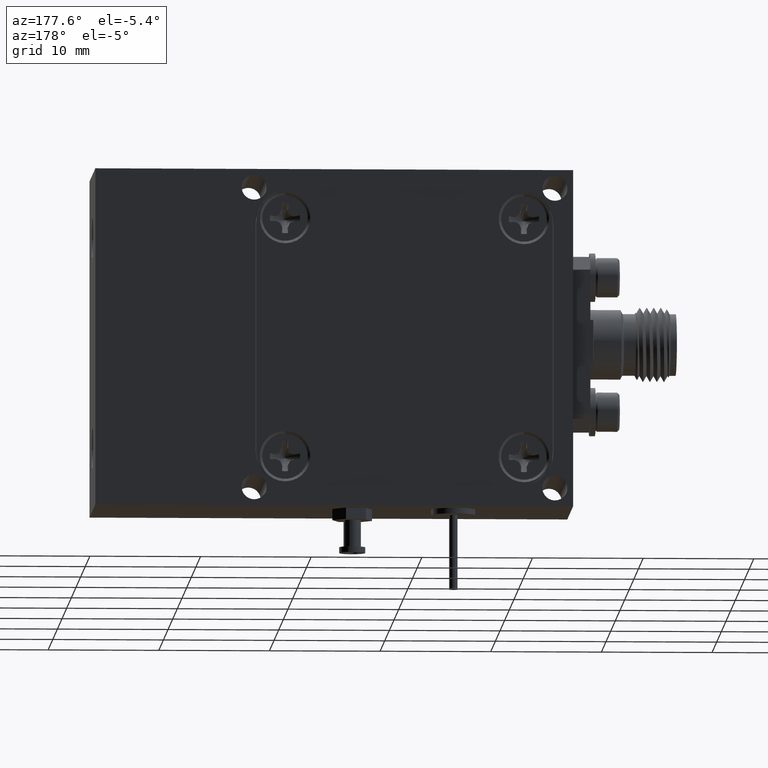
[diagram: clean part render]
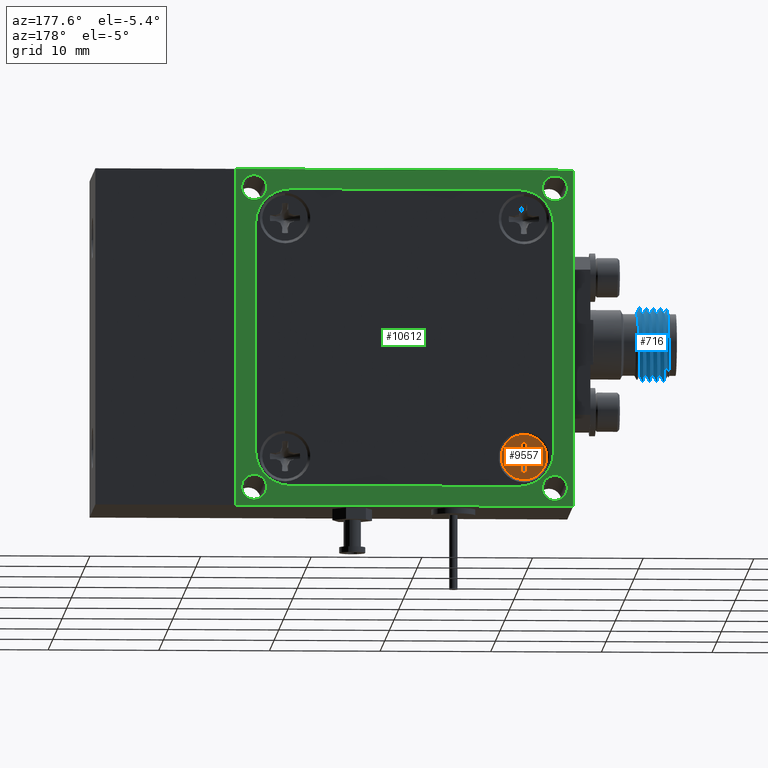
[diagram: same view with three faces highlighted in distinct colors, each labeled with its STEP entity id]
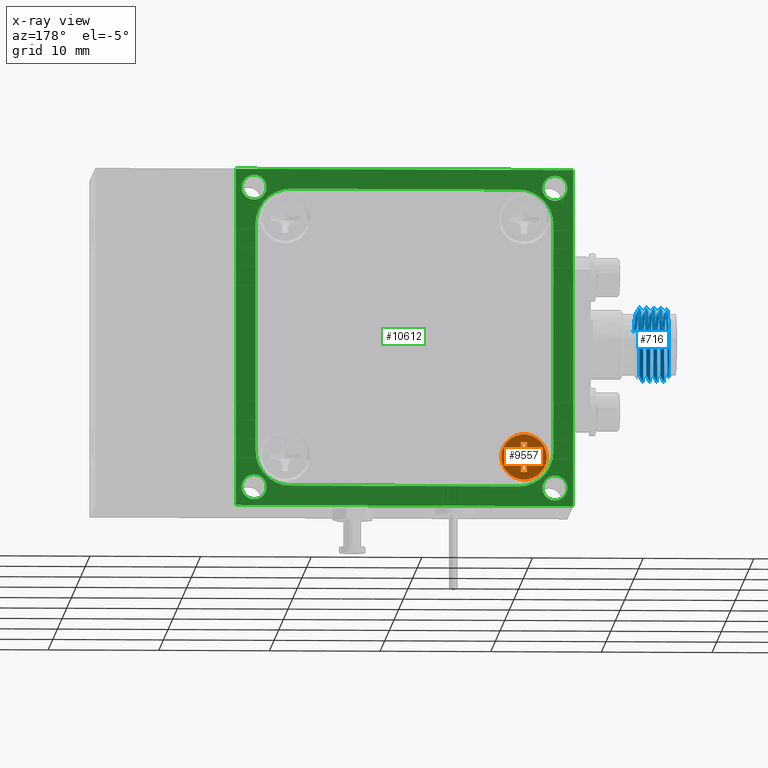
[diagram: x-ray of the same camera — body ghosted, the three highlighted faces saturated]
A machine part, auxiliary view with three faces highlighted in distinct colors.
The next image is the same camera in x-ray (body ghosted, the three faces saturated) — at least one of them is partly hidden behind the body in this view.
Their STEP definitions:

[orange] entity #9557 — the highlighted planar face has unit normal (0, -1, 0).
#12 = CARTESIAN_POINT ( 'NONE',  ( -0.4250000000000006600, 0.4995000000000000000, -0.4249999999999997100 ) ) ;
#69 = AXIS2_PLACEMENT_3D ( 'NONE', #1775, #6036, #2829 ) ;
#219 = VERTEX_POINT ( 'NONE', #705 ) ;
#395 = VECTOR ( 'NONE', #3101, 39.37007874015748900 ) ;
#497 = CARTESIAN_POINT ( 'NONE',  ( -0.3720910215558840300, 0.4995000000000000000, -0.4357999999999996900 ) ) ;
#510 = DIRECTION ( 'NONE',  ( 0.0000000000000000000, 1.000000000000000000, -6.938893903907228400E-018 ) ) ;
#530 = ORIENTED_EDGE ( 'NONE', *, *, #9614, .F. ) ;
#570 = VERTEX_POINT ( 'NONE', #3277 ) ;
#651 = CARTESIAN_POINT ( 'NONE',  ( -0.4080332828812787100, 0.4995000000000000000, -0.4080332828812781000 ) ) ;
#705 = CARTESIAN_POINT ( 'NONE',  ( -0.3931455107779423000, 0.4995000000000000000, -0.4357999999999996900 ) ) ;
#725 = VERTEX_POINT ( 'NONE', #7759 ) ;
#748 = EDGE_CURVE ( 'NONE', #7129, #2210, #10183, .T. ) ;
#929 = LINE ( 'NONE', #7716, #2244 ) ;
#967 = PLANE ( 'NONE',  #8088 ) ;
#971 = CARTESIAN_POINT ( 'NONE',  ( -0.4080332828812787100, 0.4995000000000000000, -0.4080332828812781000 ) ) ;
#1139 = DIRECTION ( 'NONE',  ( -1.047444401652940000E-014, -6.938893903907228400E-018, -1.000000000000000000 ) ) ;
#1230 = CIRCLE ( 'NONE', #4165, 0.05400000000000002700 ) ;
#1382 = CARTESIAN_POINT ( 'NONE',  ( -0.4419667171187225400, 0.4995000000000000000, -0.4419667171187214300 ) ) ;
#1510 = DIRECTION ( 'NONE',  ( -1.000000000000000000, 0.0000000000000000000, -0.0000000000000000000 ) ) ;
#1513 = DIRECTION ( 'NONE',  ( 0.9238795325112894000, 2.655399735964371300E-018, 0.3826834323650834000 ) ) ;
#1527 = EDGE_CURVE ( 'NONE', #1668, #7129, #10000, .T. ) ;
#1668 = VERTEX_POINT ( 'NONE', #971 ) ;
#1685 = DIRECTION ( 'NONE',  ( -1.000000000000000000, 0.0000000000000000000, 0.0000000000000000000 ) ) ;
#1775 = CARTESIAN_POINT ( 'NONE',  ( -0.4250000000000006600, 0.4995000000000000000, -0.4249999999999997100 ) ) ;
#1928 = FACE_OUTER_BOUND ( 'NONE', #2135, .T. ) ;
#1981 = CARTESIAN_POINT ( 'NONE',  ( -0.4250000000000006600, 0.4995000000000000000, -0.4249999999999997100 ) ) ;
#2115 = DIRECTION ( 'NONE',  ( 0.0000000000000000000, -1.000000000000000000, 2.486055127281388300E-017 ) ) ;
#2135 = EDGE_LOOP ( 'NONE', ( #2302, #7579 ) ) ;
#2210 = VERTEX_POINT ( 'NONE', #4293 ) ;
#2227 = CARTESIAN_POINT ( 'NONE',  ( -0.4358000000000008500, 0.4995000000000000000, -0.4779089784441162800 ) ) ;
#2244 = VECTOR ( 'NONE', #12878, 39.37007874015748100 ) ;
#2255 = LINE ( 'NONE', #3791, #4048 ) ;
#2302 = ORIENTED_EDGE ( 'NONE', *, *, #11647, .F. ) ;
#2437 = EDGE_CURVE ( 'NONE', #2210, #10275, #9458, .T. ) ;
#2504 = VECTOR ( 'NONE', #4238, 39.37007874015748100 ) ;
#2588 = CIRCLE ( 'NONE', #6876, 0.05399999999999995800 ) ;
#2630 = EDGE_CURVE ( 'NONE', #9869, #5399, #5266, .T. ) ;
#2726 = CARTESIAN_POINT ( 'NONE',  ( -0.4419667171187225400, 0.4995000000000000000, -0.4419667171187214300 ) ) ;
#2829 = DIRECTION ( 'NONE',  ( -3.794233324533702300E-015, 0.0000000000000000000, -1.000000000000000000 ) ) ;
#2896 = ORIENTED_EDGE ( 'NONE', *, *, #9657, .F. ) ;
#2905 = LINE ( 'NONE', #3339, #13154 ) ;
#3020 = VECTOR ( 'NONE', #5576, 39.37007874015748900 ) ;
#3085 = CARTESIAN_POINT ( 'NONE',  ( -0.4358000000000003000, 0.4995000000000000000, -0.3720910215558829700 ) ) ;
#3101 = DIRECTION ( 'NONE',  ( -0.9238795325112867400, -2.655399735964416400E-018, -0.3826834323650898900 ) ) ;
#3277 = CARTESIAN_POINT ( 'NONE',  ( -0.5060000000000006700, 0.4995000000000000000, -0.4249999999999997100 ) ) ;
#3312 = ORIENTED_EDGE ( 'NONE', *, *, #6356, .F. ) ;
#3339 = CARTESIAN_POINT ( 'NONE',  ( -0.4568544892220589000, 0.4995000000000000000, -0.4141999999999995100 ) ) ;
#3384 = VECTOR ( 'NONE', #9907, 39.37007874015748900 ) ;
#3445 = ORIENTED_EDGE ( 'NONE', *, *, #12249, .F. ) ;
#3508 = DIRECTION ( 'NONE',  ( -1.000000000000000000, 0.0000000000000000000, 0.0000000000000000000 ) ) ;
#3709 = VECTOR ( 'NONE', #4325, 39.37007874015748100 ) ;
#3711 = DIRECTION ( 'NONE',  ( 1.000000000000000000, 0.0000000000000000000, 0.0000000000000000000 ) ) ;
#3747 = ORIENTED_EDGE ( 'NONE', *, *, #10804, .F. ) ;
#3791 = CARTESIAN_POINT ( 'NONE',  ( -0.4358000000000008500, 0.4995000000000000000, -0.4779089784441162800 ) ) ;
#3894 = ORIENTED_EDGE ( 'NONE', *, *, #9447, .F. ) ;
#4048 = VECTOR ( 'NONE', #9904, 39.37007874015748100 ) ;
#4070 = CARTESIAN_POINT ( 'NONE',  ( -0.3710000000000006100, 0.4995000000000000000, -0.4249999999999997100 ) ) ;
#4073 = CARTESIAN_POINT ( 'NONE',  ( -0.4779089784441172300, 0.4995000000000000000, -0.4141999999999992900 ) ) ;
#4165 = AXIS2_PLACEMENT_3D ( 'NONE', #1981, #5038, #6060 ) ;
#4185 = LINE ( 'NONE', #11902, #9849 ) ;
#4238 = DIRECTION ( 'NONE',  ( 1.000000000000000000, -4.845403715540892700E-032, -6.982962677686265900E-015 ) ) ;
#4285 = DIRECTION ( 'NONE',  ( -1.000000000000000000, 0.0000000000000000000, 7.588466649067404500E-015 ) ) ;
#4293 = CARTESIAN_POINT ( 'NONE',  ( -0.3720910215558838600, 0.4995000000000000000, -0.4142000000000002300 ) ) ;
#4325 = DIRECTION ( 'NONE',  ( 0.0000000000000000000, -6.938893903907228400E-018, -1.000000000000000000 ) ) ;
#4336 = DIRECTION ( 'NONE',  ( 0.0000000000000000000, 1.000000000000000000, -6.938893903907228400E-018 ) ) ;
#4358 = VECTOR ( 'NONE', #1510, 39.37007874015748100 ) ;
#4417 = ORIENTED_EDGE ( 'NONE', *, *, #1527, .F. ) ;
#4646 = CARTESIAN_POINT ( 'NONE',  ( -0.4779089784441172300, 0.4995000000000000000, -0.4141999999999992900 ) ) ;
#4914 = CARTESIAN_POINT ( 'NONE',  ( -0.4568544892220590100, 0.4995000000000000000, -0.4357999999999996300 ) ) ;
#5038 = DIRECTION ( 'NONE',  ( 0.0000000000000000000, 1.000000000000000000, -6.938893903907228400E-018 ) ) ;
#5257 = CARTESIAN_POINT ( 'NONE',  ( -0.3720910215558840300, 0.4995000000000000000, -0.4357999999999996900 ) ) ;
#5266 = LINE ( 'NONE', #4073, #2504 ) ;
#5373 = ORIENTED_EDGE ( 'NONE', *, *, #12266, .F. ) ;
#5399 = VERTEX_POINT ( 'NONE', #8681 ) ;
#5401 = ORIENTED_EDGE ( 'NONE', *, *, #12870, .F. ) ;
#5439 = CARTESIAN_POINT ( 'NONE',  ( -0.4142000000000006800, 0.4995000000000000000, -0.4568544892220580700 ) ) ;
#5441 = LINE ( 'NONE', #7225, #395 ) ;
#5498 = CARTESIAN_POINT ( 'NONE',  ( -0.4358000000000008000, 0.4995000000000000000, -0.4568544892220580100 ) ) ;
#5530 = DIRECTION ( 'NONE',  ( -1.000000000000000000, 2.422701857770446300E-032, 3.491481338843133000E-015 ) ) ;
#5576 = DIRECTION ( 'NONE',  ( -0.9238795325112853000, 2.655399735964438400E-018, 0.3826834323650930600 ) ) ;
#5666 = ORIENTED_EDGE ( 'NONE', *, *, #748, .F. ) ;
#5729 = CARTESIAN_POINT ( 'NONE',  ( -0.4250000000000006600, 0.4995000000000000000, -0.4249999999999997100 ) ) ;
#5779 = DIRECTION ( 'NONE',  ( 1.000000000000000000, 0.0000000000000000000, 0.0000000000000000000 ) ) ;
#5785 = VECTOR ( 'NONE', #6226, 39.37007874015748100 ) ;
#5843 = VERTEX_POINT ( 'NONE', #11976 ) ;
#6015 = EDGE_CURVE ( 'NONE', #12781, #9869, #6077, .T. ) ;
#6036 = DIRECTION ( 'NONE',  ( 0.0000000000000000000, 1.000000000000000000, -6.938893903907228400E-018 ) ) ;
#6060 = DIRECTION ( 'NONE',  ( 1.000000000000000000, 0.0000000000000000000, 0.0000000000000000000 ) ) ;
#6077 = CIRCLE ( 'NONE', #69, 0.05399999999999995800 ) ;
#6109 = ORIENTED_EDGE ( 'NONE', *, *, #2437, .F. ) ;
#6226 = DIRECTION ( 'NONE',  ( 1.000000000000000000, -7.268105573311339800E-032, -1.047444401652940000E-014 ) ) ;
#6267 = CARTESIAN_POINT ( 'NONE',  ( -0.4142000000000001200, 0.4995000000000000000, -0.3720910215558831900 ) ) ;
#6291 = VERTEX_POINT ( 'NONE', #4914 ) ;
#6356 = EDGE_CURVE ( 'NONE', #5843, #13025, #9147, .T. ) ;
#6360 = VERTEX_POINT ( 'NONE', #6267 ) ;
#6388 = VECTOR ( 'NONE', #9339, 39.37007874015748900 ) ;
#6533 = VERTEX_POINT ( 'NONE', #2227 ) ;
#6535 = VERTEX_POINT ( 'NONE', #8529 ) ;
#6585 = LINE ( 'NONE', #5498, #7071 ) ;
#6632 = CIRCLE ( 'NONE', #13102, 0.08100000000000004400 ) ;
#6701 = CIRCLE ( 'NONE', #12926, 0.05399999999999995800 ) ;
#6781 = VECTOR ( 'NONE', #5530, 39.37007874015748100 ) ;
#6876 = AXIS2_PLACEMENT_3D ( 'NONE', #5729, #9908, #3711 ) ;
#6940 = CARTESIAN_POINT ( 'NONE',  ( -0.4358000000000008000, 0.4995000000000000000, -0.4568544892220580100 ) ) ;
#6991 = ORIENTED_EDGE ( 'NONE', *, *, #6015, .F. ) ;
#6994 = AXIS2_PLACEMENT_3D ( 'NONE', #8827, #510, #5779 ) ;
#7071 = VECTOR ( 'NONE', #12766, 39.37007874015748900 ) ;
#7093 = ORIENTED_EDGE ( 'NONE', *, *, #9673, .F. ) ;
#7129 = VERTEX_POINT ( 'NONE', #11981 ) ;
#7225 = CARTESIAN_POINT ( 'NONE',  ( -0.3931455107779423000, 0.4995000000000000000, -0.4357999999999996900 ) ) ;
#7348 = CARTESIAN_POINT ( 'NONE',  ( -0.4142000000000001200, 0.4995000000000000000, -0.3720910215558831900 ) ) ;
#7437 = LINE ( 'NONE', #497, #4358 ) ;
#7579 = ORIENTED_EDGE ( 'NONE', *, *, #7999, .F. ) ;
#7716 = CARTESIAN_POINT ( 'NONE',  ( -0.4358000000000004600, 0.4995000000000000000, -0.3931455107779413000 ) ) ;
#7759 = CARTESIAN_POINT ( 'NONE',  ( -0.4419667171187223200, 0.4995000000000000000, -0.4080332828812778300 ) ) ;
#7763 = ORIENTED_EDGE ( 'NONE', *, *, #10080, .F. ) ;
#7999 = EDGE_CURVE ( 'NONE', #570, #9422, #10991, .T. ) ;
#8088 = AXIS2_PLACEMENT_3D ( 'NONE', #10332, #2115, #10237 ) ;
#8140 = EDGE_LOOP ( 'NONE', ( #10826, #11701, #2896, #3312, #11571, #3894, #5401, #6109, #5666, #4417, #5373, #530, #8148, #7093, #7763, #10993, #9685, #6991, #3445, #11928, #3747 ) ) ;
#8148 = ORIENTED_EDGE ( 'NONE', *, *, #11166, .F. ) ;
#8251 = FACE_BOUND ( 'NONE', #8140, .T. ) ;
#8442 = VERTEX_POINT ( 'NONE', #6940 ) ;
#8529 = CARTESIAN_POINT ( 'NONE',  ( -0.4142000000000003500, 0.4995000000000000000, -0.3931455107779414600 ) ) ;
#8681 = CARTESIAN_POINT ( 'NONE',  ( -0.4568544892220589000, 0.4995000000000000000, -0.4141999999999995100 ) ) ;
#8820 = CARTESIAN_POINT ( 'NONE',  ( -0.4250000000000006600, 0.4995000000000000000, -0.4249999999999997100 ) ) ;
#8827 = CARTESIAN_POINT ( 'NONE',  ( -0.4250000000000006600, 0.4995000000000000000, -0.4249999999999997100 ) ) ;
#8950 = DIRECTION ( 'NONE',  ( -0.0000000000000000000, -1.000000000000000000, 6.938893903907228400E-018 ) ) ;
#9055 = EDGE_CURVE ( 'NONE', #5399, #725, #2905, .T. ) ;
#9135 = EDGE_CURVE ( 'NONE', #12304, #6533, #2588, .T. ) ;
#9147 = LINE ( 'NONE', #12459, #6388 ) ;
#9227 = VECTOR ( 'NONE', #1139, 39.37007874015748100 ) ;
#9268 = CARTESIAN_POINT ( 'NONE',  ( -0.4358000000000004600, 0.4995000000000000000, -0.3931455107779413000 ) ) ;
#9339 = DIRECTION ( 'NONE',  ( -0.3826834323650898900, -6.410702056087227600E-018, -0.9238795325112867400 ) ) ;
#9422 = VERTEX_POINT ( 'NONE', #10279 ) ;
#9447 = EDGE_CURVE ( 'NONE', #11964, #219, #7437, .T. ) ;
#9458 = CIRCLE ( 'NONE', #6994, 0.05400000000000002700 ) ;
#9490 = EDGE_CURVE ( 'NONE', #6533, #8442, #2255, .T. ) ;
#9557 = ADVANCED_FACE ( 'NONE', ( #8251, #1928 ), #967, .F. ) ;
#9614 = EDGE_CURVE ( 'NONE', #6360, #6535, #10038, .T. ) ;
#9657 = EDGE_CURVE ( 'NONE', #13025, #12304, #12004, .T. ) ;
#9673 = EDGE_CURVE ( 'NONE', #13408, #10716, #929, .T. ) ;
#9685 = ORIENTED_EDGE ( 'NONE', *, *, #2630, .F. ) ;
#9686 = CARTESIAN_POINT ( 'NONE',  ( -0.4568544892220590100, 0.4995000000000000000, -0.4357999999999996300 ) ) ;
#9849 = VECTOR ( 'NONE', #11858, 39.37007874015748900 ) ;
#9869 = VERTEX_POINT ( 'NONE', #4646 ) ;
#9904 = DIRECTION ( 'NONE',  ( 3.491481338843133000E-015, 6.938893903907228400E-018, 1.000000000000000000 ) ) ;
#9907 = DIRECTION ( 'NONE',  ( 0.3826834323650802300, -6.410702056087255300E-018, -0.9238795325112907400 ) ) ;
#9908 = DIRECTION ( 'NONE',  ( 0.0000000000000000000, 1.000000000000000000, -6.938893903907228400E-018 ) ) ;
#10000 = LINE ( 'NONE', #651, #12285 ) ;
#10038 = LINE ( 'NONE', #7348, #9227 ) ;
#10080 = EDGE_CURVE ( 'NONE', #725, #13408, #4185, .T. ) ;
#10084 = AXIS2_PLACEMENT_3D ( 'NONE', #8820, #8950, #1685 ) ;
#10183 = LINE ( 'NONE', #11471, #5785 ) ;
#10237 = DIRECTION ( 'NONE',  ( 0.0000000000000000000, -2.486055127281388300E-017, -1.000000000000000000 ) ) ;
#10275 = VERTEX_POINT ( 'NONE', #4070 ) ;
#10279 = CARTESIAN_POINT ( 'NONE',  ( -0.3440000000000006400, 0.4995000000000000000, -0.4249999999999997100 ) ) ;
#10332 = CARTESIAN_POINT ( 'NONE',  ( -0.4250000000000006600, 0.4995000000000000000, -0.4679999999999996900 ) ) ;
#10676 = LINE ( 'NONE', #1382, #3020 ) ;
#10716 = VERTEX_POINT ( 'NONE', #3085 ) ;
#10780 = DIRECTION ( 'NONE',  ( -0.0000000000000000000, -1.000000000000000000, 6.938893903907228400E-018 ) ) ;
#10804 = EDGE_CURVE ( 'NONE', #8442, #11714, #6585, .T. ) ;
#10826 = ORIENTED_EDGE ( 'NONE', *, *, #9490, .F. ) ;
#10991 = CIRCLE ( 'NONE', #10084, 0.08100000000000004400 ) ;
#10993 = ORIENTED_EDGE ( 'NONE', *, *, #9055, .F. ) ;
#11129 = DIRECTION ( 'NONE',  ( 0.9238795325112827400, -2.655399735964483400E-018, -0.3826834323650995500 ) ) ;
#11166 = EDGE_CURVE ( 'NONE', #10716, #6360, #6701, .T. ) ;
#11471 = CARTESIAN_POINT ( 'NONE',  ( -0.3931455107779422400, 0.4995000000000000000, -0.4142000000000000700 ) ) ;
#11571 = ORIENTED_EDGE ( 'NONE', *, *, #13500, .F. ) ;
#11617 = CARTESIAN_POINT ( 'NONE',  ( -0.4142000000000006800, 0.4995000000000000000, -0.4568544892220580700 ) ) ;
#11647 = EDGE_CURVE ( 'NONE', #9422, #570, #6632, .T. ) ;
#11701 = ORIENTED_EDGE ( 'NONE', *, *, #9135, .F. ) ;
#11714 = VERTEX_POINT ( 'NONE', #2726 ) ;
#11858 = DIRECTION ( 'NONE',  ( 0.3826834323650963300, 6.410702056087208300E-018, 0.9238795325112839600 ) ) ;
#11902 = CARTESIAN_POINT ( 'NONE',  ( -0.4419667171187223200, 0.4995000000000000000, -0.4080332828812778300 ) ) ;
#11928 = ORIENTED_EDGE ( 'NONE', *, *, #13055, .F. ) ;
#11964 = VERTEX_POINT ( 'NONE', #5257 ) ;
#11976 = CARTESIAN_POINT ( 'NONE',  ( -0.4080332828812788200, 0.4995000000000000000, -0.4419667171187215400 ) ) ;
#11981 = CARTESIAN_POINT ( 'NONE',  ( -0.3931455107779422400, 0.4995000000000000000, -0.4142000000000000700 ) ) ;
#11984 = CARTESIAN_POINT ( 'NONE',  ( -0.4142000000000003500, 0.4995000000000000000, -0.3931455107779414600 ) ) ;
#12004 = LINE ( 'NONE', #11617, #3709 ) ;
#12117 = CARTESIAN_POINT ( 'NONE',  ( -0.4142000000000006800, 0.4995000000000000000, -0.4779089784441163400 ) ) ;
#12249 = EDGE_CURVE ( 'NONE', #6291, #12781, #13468, .T. ) ;
#12266 = EDGE_CURVE ( 'NONE', #6535, #1668, #12333, .T. ) ;
#12285 = VECTOR ( 'NONE', #11129, 39.37007874015748900 ) ;
#12304 = VERTEX_POINT ( 'NONE', #12117 ) ;
#12333 = LINE ( 'NONE', #11984, #3384 ) ;
#12351 = CARTESIAN_POINT ( 'NONE',  ( -0.4779089784441173400, 0.4995000000000000000, -0.4357999999999994700 ) ) ;
#12459 = CARTESIAN_POINT ( 'NONE',  ( -0.4080332828812788200, 0.4995000000000000000, -0.4419667171187215400 ) ) ;
#12766 = DIRECTION ( 'NONE',  ( -0.3826834323650866700, 6.410702056087236000E-018, 0.9238795325112879600 ) ) ;
#12781 = VERTEX_POINT ( 'NONE', #12351 ) ;
#12824 = CARTESIAN_POINT ( 'NONE',  ( -0.4250000000000006600, 0.4995000000000000000, -0.4249999999999997100 ) ) ;
#12870 = EDGE_CURVE ( 'NONE', #10275, #11964, #1230, .T. ) ;
#12878 = DIRECTION ( 'NONE',  ( 6.982962677686265900E-015, 6.938893903907228400E-018, 1.000000000000000000 ) ) ;
#12926 = AXIS2_PLACEMENT_3D ( 'NONE', #12, #4336, #4285 ) ;
#13025 = VERTEX_POINT ( 'NONE', #5439 ) ;
#13055 = EDGE_CURVE ( 'NONE', #11714, #6291, #10676, .T. ) ;
#13102 = AXIS2_PLACEMENT_3D ( 'NONE', #12824, #10780, #3508 ) ;
#13154 = VECTOR ( 'NONE', #1513, 39.37007874015748900 ) ;
#13408 = VERTEX_POINT ( 'NONE', #9268 ) ;
#13468 = LINE ( 'NONE', #9686, #6781 ) ;
#13500 = EDGE_CURVE ( 'NONE', #219, #5843, #5441, .T. ) ;

[blue] entity #716 — the highlighted face is a freeform B-spline surface patch.
#33 = CARTESIAN_POINT ( 'NONE',  ( -0.8275000000000012300, 0.1391339745962153200, 0.0005000000000010325000 ) ) ;
#86 = CARTESIAN_POINT ( 'NONE',  ( -0.8170833333333346000, 0.3608660254037851000, -0.06350852961085784500 ) ) ;
#270 = CARTESIAN_POINT ( 'NONE',  ( -0.9045833333333344100, 0.3825166604983957800, -0.07600852961085813300 ) ) ;
#292 =( BOUNDED_CURVE ( )  B_SPLINE_CURVE ( 2, ( #9619, #4553, #8720, #1364, #11842, #1495, #3597, #6496, #2562, #1313, #354, #8765, #12790, #9802, #10884, #7625, #11924, #270, #6543, #8642, #7532, #3431, #311, #2420, #3476, #13008, #6804, #675, #4728, #9848, #4774, #6844, #6709, #6755, #578, #2693, #12105, #3646, #1585, #12056, #8936, #3698, #10972, #9991, #12010, #5851, #13137, #10926, #7892 ),
 .UNSPECIFIED., .F., .T. ) 
 B_SPLINE_CURVE_WITH_KNOTS ( ( 3, 2, 2, 2, 2, 2, 2, 2, 2, 2, 2, 2, 2, 2, 2, 2, 2, 2, 2, 2, 2, 2, 2, 2, 3 ),
 ( 0.1428571428571428500, 0.1666666666666666600, 0.1904761904761904700, 0.2142857142857142700, 0.2380952380952380800, 0.2619047619047619200, 0.2857142857142857000, 0.3095238095238095300, 0.3333333333333333100, 0.3571428571428571500, 0.3809523809523809300, 0.4047619047619047700, 0.4285714285714285500, 0.4523809523809523800, 0.4761904761904761600, 0.5000000000000000000, 0.5238095238095238400, 0.5476190476190476700, 0.5714285714285714000, 0.5952380952380952300, 0.6190476190476190700, 0.6428571428571427900, 0.6666666666666665200, 0.6904761904761904700, 0.7021188828821798300 ),
 .UNSPECIFIED. ) 
 CURVE ( )  GEOMETRIC_REPRESENTATION_ITEM ( )  RATIONAL_B_SPLINE_CURVE ( ( 1.000000000000000000, 0.8660254037844387100, 1.000000000000000000, 0.8660254037844387100, 1.000000000000000000, 0.8660254037844387100, 1.000000000000000000, 0.8660254037844387100, 1.000000000000000000, 0.8660254037844387100, 1.000000000000000000, 0.8660254037844387100, 1.000000000000000000, 0.8660254037844387100, 1.000000000000000000, 0.8660254037844387100, 1.000000000000000000, 0.8660254037844387100, 1.000000000000000000, 0.8660254037844387100, 1.000000000000000000, 0.8660254037844387100, 1.000000000000000000, 0.8660254037844387100, 1.000000000000000000, 0.8660254037844387100, 1.000000000000000000, 0.8660254037844387100, 1.000000000000000000, 0.8660254037844387100, 1.000000000000000000, 0.8660254037844387100, 1.000000000000000000, 0.8660254037844387100, 1.000000000000000000, 0.8660254037844387100, 1.000000000000000000, 0.8660254037844387100, 1.000000000000000000, 0.8660254037844387100, 1.000000000000000000, 0.8660254037844387100, 1.000000000000000000, 0.8660254037844387100, 1.000000000000000000, 0.8660254037844387100, 1.000000000000000000, 0.9344873494139149800, 0.9330451645437170000 ) ) 
 REPRESENTATION_ITEM ( '' )  );
#311 = CARTESIAN_POINT ( 'NONE',  ( -0.8941666666666675500, 0.1837416697508025600, 0.1152627944162896400 ) ) ;
#353 = CARTESIAN_POINT ( 'NONE',  ( -0.9493750000000000800, 0.2500000000000629500, -0.1157786841774384300 ) ) ;
#354 = CARTESIAN_POINT ( 'NONE',  ( -0.9191666666666673500, 0.1837416697508022800, 0.1152627944162895000 ) ) ;
#356 = CARTESIAN_POINT ( 'NONE',  ( -0.9650000000000010800, 0.1174833395016042800, 0.0005000000000010336900 ) ) ;
#378 = CARTESIAN_POINT ( 'NONE',  ( -0.9476419322062296100, 0.3420237910856766500, -0.07580417702671353500 ) ) ;
#428 = CARTESIAN_POINT ( 'NONE',  ( -0.9456807190362174200, 0.3676146176156135400, 0.03626908954166812400 ) ) ;
#513 = CARTESIAN_POINT ( 'NONE',  ( -0.9466813568149127200, 0.3680938953978077900, -0.02678565802014603100 ) ) ;
#535 = CARTESIAN_POINT ( 'NONE',  ( -0.9379166666666672900, 0.1174833395016044200, -0.07600852961085763400 ) ) ;
#578 = CARTESIAN_POINT ( 'NONE',  ( -0.8691666666666676400, 0.1837416697508025600, 0.1152627944162895000 ) ) ;
#583 = CARTESIAN_POINT ( 'NONE',  ( -0.8837500000000014800, 0.2500000000000002200, -0.1525170592217167400 ) ) ;
#610 = CARTESIAN_POINT ( 'NONE',  ( -0.9421900840923034300, 0.1922474293415039600, 0.1158507098152366500 ) ) ;
#622 = CARTESIAN_POINT ( 'NONE',  ( -0.9502846222357305100, 0.1999052757144957900, -0.1029577985668512500 ) ) ;
#632 = CARTESIAN_POINT ( 'NONE',  ( -0.9525000000000011200, 0.1391339745962153200, 0.0005000000000011691100 ) ) ;
#656 = VERTEX_POINT ( 'NONE', #9583 ) ;
#669 = CARTESIAN_POINT ( 'NONE',  ( -0.9515775714976437700, 0.1493263859323461500, -0.05017349423906039600 ) ) ;
#675 = CARTESIAN_POINT ( 'NONE',  ( -0.8837500000000008100, 0.2499999999999997500, -0.1525170592217167400 ) ) ;
#677 = CARTESIAN_POINT ( 'NONE',  ( -0.8420833333333341800, 0.1174833395016044200, 0.07700852961086003500 ) ) ;
#716 = ADVANCED_FACE ( 'NONE', ( #11991 ), #1051, .F. ) ;
#727 = CARTESIAN_POINT ( 'NONE',  ( -0.8108333333333340700, 0.1837416697508021100, -0.1142627944162871000 ) ) ;
#738 = CARTESIAN_POINT ( 'NONE',  ( -0.9212500000000012300, 0.2500000000000002200, -0.1275170592217167200 ) ) ;
#765 = CARTESIAN_POINT ( 'NONE',  ( -0.9295833333333342100, 0.1391339745962154300, 0.06450852961086006600 ) ) ;
#812 = CARTESIAN_POINT ( 'NONE',  ( -0.9045833333333344100, 0.1391339745962152900, 0.06450852961086006600 ) ) ;
#821 = CARTESIAN_POINT ( 'NONE',  ( -0.8754166666666677300, 0.1391339745962156000, -0.06350852961085751100 ) ) ;
#860 = CARTESIAN_POINT ( 'NONE',  ( -0.9170833333333345800, 0.3608660254037851000, -0.06350852961085801100 ) ) ;
#870 = CARTESIAN_POINT ( 'NONE',  ( -0.9504166666666674600, 0.1391339745962156000, -0.06350852961085766400 ) ) ;
#908 = CARTESIAN_POINT ( 'NONE',  ( -0.8316666666666678900, 0.1945669872981077300, 0.09651279441628946000 ) ) ;
#922 = CARTESIAN_POINT ( 'NONE',  ( -0.9358333333333339600, 0.3054330127018929400, 0.09651279441628932100 ) ) ;
#952 = CARTESIAN_POINT ( 'NONE',  ( -0.9379166666666675100, 0.3608660254037851000, 0.06450852961085973300 ) ) ;
#992 = CARTESIAN_POINT ( 'NONE',  ( -0.8004166666666676600, 0.1391339745962154300, -0.06350852961085766400 ) ) ;
#1051 =( BOUNDED_SURFACE ( )  B_SPLINE_SURFACE ( 1, 2, ( 
 ( #356, #1458, #2607, #8724, #2423, #9851, #9760, #7630, #1414, #4596, #2515, #9672, #3650, #535, #1368, #3480, #12917, #10759, #4508, #1497, #6671, #11795, #2566, #5560, #9804, #3599, #8851, #11016, #1676, #1771, #10973, #2698, #3872, #1588, #10081, #9898, #9030, #6847, #9937, #583, #6901, #6992, #5765, #2642, #5942, #13093, #3780, #8942, #2744, #2787, #9994, #10036, #3744, #7941, #11159, #11065, #4874, #4827, #13046, #677, #12106, #1724, #7846, #3829, #12150, #5854, #1627, #6806, #11108, #13141, #5899, #13186, #4731, #6947, #727, #2823, #5808, #7976, #4916, #12194, #13230, #4777, #12015, #12060, #8894 ),
 ( #632, #10221, #6130, #1960, #13452, #3049, #2918, #952, #2871, #4013, #12414, #765, #13323, #10270, #12368, #13411, #9214, #860, #8024, #10319, #8159, #7163, #8213, #812, #8114, #2003, #6029, #3920, #6085, #7121, #1810, #8072, #1912, #2955, #9258, #11199, #1859, #13362, #4061, #7075, #12279, #9071, #10174, #5010, #5152, #11281, #3961, #10125, #11240, #4959, #3005, #11337, #13276, #12235, #5054, #12324, #5989, #9168, #908, #7028, #33, #10418, #12463, #4310, #4265, #86, #8264, #4183, #1080, #1164, #10369, #2100, #3263, #992, #9471, #9301, #8441, #6274, #9346, #13498, #6314, #6396, #5199, #7212, #5367 ) ),
 .UNSPECIFIED., .F., .F., .T. ) 
 B_SPLINE_SURFACE_WITH_KNOTS ( ( 2, 2 ),
 ( 3, 2, 2, 2, 2, 2, 2, 2, 2, 2, 2, 2, 2, 2, 2, 2, 2, 2, 2, 2, 2, 2, 2, 2, 2, 2, 2, 2, 2, 2, 2, 2, 2, 2, 2, 2, 2, 2, 2, 2, 2, 2, 3 ),
 ( 0.0000000000000000000, 1.000000000000000000 ),
 ( 0.0000000000000000000, 0.02380952380952380800, 0.04761904761904761600, 0.07142857142857142500, 0.09523809523809523300, 0.1190476190476190400, 0.1428571428571428500, 0.1666666666666666600, 0.1904761904761904700, 0.2142857142857142700, 0.2380952380952380800, 0.2619047619047619200, 0.2857142857142857000, 0.3095238095238095300, 0.3333333333333333100, 0.3571428571428571500, 0.3809523809523809300, 0.4047619047619047700, 0.4285714285714285500, 0.4523809523809523800, 0.4761904761904761600, 0.5000000000000000000, 0.5238095238095238400, 0.5476190476190476700, 0.5714285714285714000, 0.5952380952380952300, 0.6190476190476190700, 0.6428571428571429000, 0.6666666666666666300, 0.6904761904761904700, 0.7142857142857143000, 0.7380952380952381400, 0.7619047619047618600, 0.7857142857142857000, 0.8095238095238095300, 0.8333333333333333700, 0.8571428571428571000, 0.8809523809523809300, 0.9047619047619047700, 0.9285714285714286000, 0.9523809523809523300, 0.9761904761904761600, 1.000000000000000000 ),
 .UNSPECIFIED. ) 
 GEOMETRIC_REPRESENTATION_ITEM ( )  RATIONAL_B_SPLINE_SURFACE ( (
 ( 1.000000000000000000, 0.8660254037844387100, 1.000000000000000000, 0.8660254037844387100, 1.000000000000000000, 0.8660254037844387100, 1.000000000000000000, 0.8660254037844387100, 1.000000000000000000, 0.8660254037844387100, 1.000000000000000000, 0.8660254037844387100, 1.000000000000000000, 0.8660254037844387100, 1.000000000000000000, 0.8660254037844387100, 1.000000000000000000, 0.8660254037844387100, 1.000000000000000000, 0.8660254037844387100, 1.000000000000000000, 0.8660254037844387100, 1.000000000000000000, 0.8660254037844387100, 1.000000000000000000, 0.8660254037844387100, 1.000000000000000000, 0.8660254037844387100, 1.000000000000000000, 0.8660254037844387100, 1.000000000000000000, 0.8660254037844387100, 1.000000000000000000, 0.8660254037844387100, 1.000000000000000000, 0.8660254037844387100, 1.000000000000000000, 0.8660254037844387100, 1.000000000000000000, 0.8660254037844387100, 1.000000000000000000, 0.8660254037844387100, 1.000000000000000000, 0.8660254037844387100, 1.000000000000000000, 0.8660254037844387100, 1.000000000000000000, 0.8660254037844387100, 1.000000000000000000, 0.8660254037844387100, 1.000000000000000000, 0.8660254037844387100, 1.000000000000000000, 0.8660254037844387100, 1.000000000000000000, 0.8660254037844387100, 1.000000000000000000, 0.8660254037844387100, 1.000000000000000000, 0.8660254037844387100, 1.000000000000000000, 0.8660254037844387100, 1.000000000000000000, 0.8660254037844387100, 1.000000000000000000, 0.8660254037844387100, 1.000000000000000000, 0.8660254037844387100, 1.000000000000000000, 0.8660254037844387100, 1.000000000000000000, 0.8660254037844387100, 1.000000000000000000, 0.8660254037844387100, 1.000000000000000000, 0.8660254037844387100, 1.000000000000000000, 0.8660254037844387100, 1.000000000000000000, 0.8660254037844387100, 1.000000000000000000, 0.8660254037844387100, 1.000000000000000000, 0.8660254037844387100, 1.000000000000000000),
 ( 1.000000000000000000, 0.8660254037844387100, 1.000000000000000000, 0.8660254037844387100, 1.000000000000000000, 0.8660254037844387100, 1.000000000000000000, 0.8660254037844387100, 1.000000000000000000, 0.8660254037844387100, 1.000000000000000000, 0.8660254037844387100, 1.000000000000000000, 0.8660254037844387100, 1.000000000000000000, 0.8660254037844387100, 1.000000000000000000, 0.8660254037844387100, 1.000000000000000000, 0.8660254037844387100, 1.000000000000000000, 0.8660254037844387100, 1.000000000000000000, 0.8660254037844387100, 1.000000000000000000, 0.8660254037844387100, 1.000000000000000000, 0.8660254037844387100, 1.000000000000000000, 0.8660254037844387100, 1.000000000000000000, 0.8660254037844387100, 1.000000000000000000, 0.8660254037844387100, 1.000000000000000000, 0.8660254037844387100, 1.000000000000000000, 0.8660254037844387100, 1.000000000000000000, 0.8660254037844387100, 1.000000000000000000, 0.8660254037844387100, 1.000000000000000000, 0.8660254037844387100, 1.000000000000000000, 0.8660254037844387100, 1.000000000000000000, 0.8660254037844387100, 1.000000000000000000, 0.8660254037844387100, 1.000000000000000000, 0.8660254037844387100, 1.000000000000000000, 0.8660254037844387100, 1.000000000000000000, 0.8660254037844387100, 1.000000000000000000, 0.8660254037844387100, 1.000000000000000000, 0.8660254037844387100, 1.000000000000000000, 0.8660254037844387100, 1.000000000000000000, 0.8660254037844387100, 1.000000000000000000, 0.8660254037844387100, 1.000000000000000000, 0.8660254037844387100, 1.000000000000000000, 0.8660254037844387100, 1.000000000000000000, 0.8660254037844387100, 1.000000000000000000, 0.8660254037844387100, 1.000000000000000000, 0.8660254037844387100, 1.000000000000000000, 0.8660254037844387100, 1.000000000000000000, 0.8660254037844387100, 1.000000000000000000, 0.8660254037844387100, 1.000000000000000000, 0.8660254037844387100, 1.000000000000000000) ) ) 
 REPRESENTATION_ITEM ( '' )  SURFACE ( )  );
#1080 = CARTESIAN_POINT ( 'NONE',  ( -0.8108333333333346300, 0.3054330127018927700, 0.09651279441628932100 ) ) ;
#1164 = CARTESIAN_POINT ( 'NONE',  ( -0.8087500000000010800, 0.2500000000000003900, 0.1285170592217187400 ) ) ;
#1205 = CARTESIAN_POINT ( 'NONE',  ( -0.8296324865405186900, 0.1546478170536250100, 0.05706179626031840400 ) ) ;
#1313 = CARTESIAN_POINT ( 'NONE',  ( -0.9212500000000010100, 0.2500000000000003900, 0.1535170592217190400 ) ) ;
#1364 = CARTESIAN_POINT ( 'NONE',  ( -0.9337500000000011900, 0.2500000000000000600, -0.1525170592217167400 ) ) ;
#1368 = CARTESIAN_POINT ( 'NONE',  ( -0.9358333333333339600, 0.1837416697508022500, -0.1142627944162872400 ) ) ;
#1414 = CARTESIAN_POINT ( 'NONE',  ( -0.9483333333333339200, 0.3162583302491982500, 0.1152627944162890900 ) ) ;
#1458 = CARTESIAN_POINT ( 'NONE',  ( -0.9629166666666677500, 0.1174833395016045800, -0.07600852961085763400 ) ) ;
#1479 = CARTESIAN_POINT ( 'NONE',  ( -0.9479118427599134700, 0.3307739321219342900, -0.08699268011423308400 ) ) ;
#1491 = CARTESIAN_POINT ( 'NONE',  ( -0.8421324865405186400, 0.1360268255377178600, 0.06810754996771720100 ) ) ;
#1495 = CARTESIAN_POINT ( 'NONE',  ( -0.9295833333333342100, 0.3825166604983957800, -0.07600852961085813300 ) ) ;
#1497 = CARTESIAN_POINT ( 'NONE',  ( -0.9254166666666676600, 0.3825166604983958900, 0.07700852961085984100 ) ) ;
#1573 = CARTESIAN_POINT ( 'NONE',  ( -0.9480448685624457400, 0.3245526337998462800, -0.09206293769052943700 ) ) ;
#1585 = CARTESIAN_POINT ( 'NONE',  ( -0.8608333333333343400, 0.1837416697508018300, -0.1142627944162869800 ) ) ;
#1588 = CARTESIAN_POINT ( 'NONE',  ( -0.8962500000000009900, 0.2500000000000003900, 0.1535170592217190200 ) ) ;
#1627 = CARTESIAN_POINT ( 'NONE',  ( -0.8275000000000012300, 0.3825166604983960500, 0.0005000000000010181800 ) ) ;
#1666 = CARTESIAN_POINT ( 'NONE',  ( -0.9503995784162917500, 0.1934407478557707300, -0.09933406621422795300 ) ) ;
#1676 = CARTESIAN_POINT ( 'NONE',  ( -0.9066666666666675100, 0.3162583302491982500, -0.1142627944162871000 ) ) ;
#1713 = CARTESIAN_POINT ( 'NONE',  ( -0.9518505612792737000, 0.1439841587275213200, -0.03634415325302348800 ) ) ;
#1724 = CARTESIAN_POINT ( 'NONE',  ( -0.8379166666666675300, 0.1174833395016042600, -0.07600852961085763400 ) ) ;
#1771 = CARTESIAN_POINT ( 'NONE',  ( -0.9045833333333346300, 0.3825166604983958900, -0.07600852961085798100 ) ) ;
#1780 = CARTESIAN_POINT ( 'NONE',  ( -0.9066666666666675100, 0.1945669872981078700, 0.09651279441628946000 ) ) ;
#1810 = CARTESIAN_POINT ( 'NONE',  ( -0.8900000000000009000, 0.3608660254037848700, 0.0005000000000010193800 ) ) ;
#1822 = CARTESIAN_POINT ( 'NONE',  ( -0.9170833333333345800, 0.3608660254037850400, -0.06350852961085799700 ) ) ;
#1859 = CARTESIAN_POINT ( 'NONE',  ( -0.8775000000000009500, 0.1391339745962151800, 0.0005000000000011691100 ) ) ;
#1877 = CARTESIAN_POINT ( 'NONE',  ( -0.8525000000000010300, 0.1391339745962153200, 0.0005000000000014422200 ) ) ;
#1912 = CARTESIAN_POINT ( 'NONE',  ( -0.8858333333333342500, 0.3054330127018927700, 0.09651279441628932100 ) ) ;
#1927 = CARTESIAN_POINT ( 'NONE',  ( -0.8670833333333344300, 0.3608660254037847600, -0.06350852961085816400 ) ) ;
#1960 = CARTESIAN_POINT ( 'NONE',  ( -0.9462500000000008100, 0.2500000000000003900, -0.1275170592217165500 ) ) ;
#1967 = CARTESIAN_POINT ( 'NONE',  ( -0.9087500000000010600, 0.2500000000000003900, 0.1285170592217190500 ) ) ;
#2003 = CARTESIAN_POINT ( 'NONE',  ( -0.9004166666666677500, 0.1391339745962156000, -0.06350852961085751100 ) ) ;
#2063 = CARTESIAN_POINT ( 'NONE',  ( -0.8296324865405185800, 0.1546478170536250100, 0.05706179626031840400 ) ) ;
#2100 = CARTESIAN_POINT ( 'NONE',  ( -0.8045833333333343200, 0.1391339745962154300, 0.06450852961086006600 ) ) ;
#2154 = ORIENTED_EDGE ( 'NONE', *, *, #4453, .F. ) ;
#2312 = CARTESIAN_POINT ( 'NONE',  ( -0.9440159793391048600, 0.3037110606485298700, 0.1142713286742510800 ) ) ;
#2420 = CARTESIAN_POINT ( 'NONE',  ( -0.8920833333333343400, 0.1174833395016045800, 0.07700852961086049300 ) ) ;
#2423 = CARTESIAN_POINT ( 'NONE',  ( -0.9566666666666672200, 0.3162583302491982500, -0.1142627944162871000 ) ) ;
#2488 = CARTESIAN_POINT ( 'NONE',  ( -0.9464257632162076400, 0.3710860491046260000, -0.01116722891734914600 ) ) ;
#2515 = CARTESIAN_POINT ( 'NONE',  ( -0.9441666666666672600, 0.1837416697508022800, 0.1152627944162893700 ) ) ;
#2562 = CARTESIAN_POINT ( 'NONE',  ( -0.9233333333333340100, 0.3162583302491983600, 0.1152627944162892300 ) ) ;
#2566 = CARTESIAN_POINT ( 'NONE',  ( -0.9191666666666673500, 0.1837416697508022800, 0.1152627944162893700 ) ) ;
#2587 = CARTESIAN_POINT ( 'NONE',  ( -0.9459390657077699800, 0.3708053584251878600, 0.02072629164194187200 ) ) ;
#2607 = CARTESIAN_POINT ( 'NONE',  ( -0.9608333333333338700, 0.1837416697508021100, -0.1142627944162871000 ) ) ;
#2642 = CARTESIAN_POINT ( 'NONE',  ( -0.8754166666666677300, 0.3825166604983958900, 0.07700852961085984100 ) ) ;
#2693 = CARTESIAN_POINT ( 'NONE',  ( -0.8670833333333342100, 0.1174833395016045800, 0.07700852961086049300 ) ) ;
#2698 = CARTESIAN_POINT ( 'NONE',  ( -0.9004166666666679800, 0.3825166604983958900, 0.07700852961085984100 ) ) ;
#2736 = CARTESIAN_POINT ( 'NONE',  ( -0.9510312280378475600, 0.1652694811445814300, -0.07524965969925424800 ) ) ;
#2744 = CARTESIAN_POINT ( 'NONE',  ( -0.8650000000000009900, 0.1174833395016041400, 0.0005000000000010336900 ) ) ;
#2787 = CARTESIAN_POINT ( 'NONE',  ( -0.8629166666666674400, 0.1174833395016042600, -0.07600852961085763400 ) ) ;
#2796 = CARTESIAN_POINT ( 'NONE',  ( -0.9045833333333344100, 0.1391339745962154300, 0.06450852961086039900 ) ) ;
#2805 = CARTESIAN_POINT ( 'NONE',  ( -0.9406239330508594500, 0.1250688298819497000, 0.04221470167794157800 ) ) ;
#2823 = CARTESIAN_POINT ( 'NONE',  ( -0.8087500000000010800, 0.2500000000000002200, -0.1525170592217167400 ) ) ;
#2834 = CARTESIAN_POINT ( 'NONE',  ( -0.8733333333333342900, 0.1945669872981078100, -0.09551279441628693400 ) ) ;
#2847 = CARTESIAN_POINT ( 'NONE',  ( -0.9416968625636394900, 0.1636109729061807300, 0.09744901161266038300 ) ) ;
#2871 = CARTESIAN_POINT ( 'NONE',  ( -0.9358333333333339600, 0.3054330127018929400, 0.09651279441628932100 ) ) ;
#2884 = CARTESIAN_POINT ( 'NONE',  ( -0.8566666666666676900, 0.1945669872981079800, 0.09651279441628959900 ) ) ;
#2918 = CARTESIAN_POINT ( 'NONE',  ( -0.9400000000000006100, 0.3608660254037848700, 0.0005000000000010193800 ) ) ;
#2955 = CARTESIAN_POINT ( 'NONE',  ( -0.8837500000000014800, 0.2500000000000002200, 0.1285170592217189100 ) ) ;
#2965 = CARTESIAN_POINT ( 'NONE',  ( -0.9316666666666673100, 0.1945669872981077300, 0.09651279441628932100 ) ) ;
#3005 = CARTESIAN_POINT ( 'NONE',  ( -0.8483333333333343800, 0.1945669872981078100, -0.09551279441628721100 ) ) ;
#3049 = CARTESIAN_POINT ( 'NONE',  ( -0.9420833333333346000, 0.3608660254037851000, -0.06350852961085784500 ) ) ;
#3263 = CARTESIAN_POINT ( 'NONE',  ( -0.8025000000000013200, 0.1391339745962153200, 0.0005000000000011691100 ) ) ;
#3431 = CARTESIAN_POINT ( 'NONE',  ( -0.8962500000000009900, 0.2500000000000008900, 0.1535170592217188500 ) ) ;
#3476 = CARTESIAN_POINT ( 'NONE',  ( -0.8900000000000009000, 0.1174833395016044000, 0.0005000000000011703000 ) ) ;
#3480 = CARTESIAN_POINT ( 'NONE',  ( -0.9337500000000013000, 0.2500000000000002200, -0.1525170592217169100 ) ) ;
#3495 = VERTEX_POINT ( 'NONE', #5701 ) ;
#3540 = CARTESIAN_POINT ( 'NONE',  ( -0.9492318041634592000, 0.2579922992573500700, -0.1160267066417555000 ) ) ;
#3549 = EDGE_CURVE ( 'NONE', #7740, #3495, #11230, .T. ) ;
#3583 = CARTESIAN_POINT ( 'NONE',  ( -0.9455484951473532900, 0.3652814634818593600, 0.04386782524965113200 ) ) ;
#3597 = CARTESIAN_POINT ( 'NONE',  ( -0.9275000000000006600, 0.3825166604983960500, 0.0005000000000010181800 ) ) ;
#3599 = CARTESIAN_POINT ( 'NONE',  ( -0.9129166666666677100, 0.1174833395016044200, -0.07600852961085748100 ) ) ;
#3646 = CARTESIAN_POINT ( 'NONE',  ( -0.8629166666666678900, 0.1174833395016042800, -0.07600852961085748100 ) ) ;
#3650 = CARTESIAN_POINT ( 'NONE',  ( -0.9400000000000006100, 0.1174833395016042800, 0.0005000000000010336900 ) ) ;
#3680 = CARTESIAN_POINT ( 'NONE',  ( -0.9452778443880099900, 0.3590785661943505200, 0.05870569186215599000 ) ) ;
#3698 = CARTESIAN_POINT ( 'NONE',  ( -0.8545833333333345800, 0.3825166604983954400, -0.07600852961085845200 ) ) ;
#3712 = B_SPLINE_CURVE_WITH_KNOTS ( 'NONE', 3,
 ( #12719, #6385, #4345, #11638, #7466, #2312, #9558, #9872, #8663, #6653, #4667, #6612, #3680, #3583, #428, #2587, #7689, #12859, #2488, #513, #9740, #7739, #12987, #6735, #378, #1479, #1573, #8748, #10773, #5663, #6688, #7603, #3540, #10865 ),
 .UNSPECIFIED., .F., .F.,
 ( 4, 2, 2, 2, 2, 2, 2, 2, 2, 2, 2, 2, 2, 2, 2, 2, 4 ),
 ( 0.005158445758267248700, 0.005762576086737780300, 0.006366706415208311900, 0.006970836743678843600, 0.007574967072149375200, 0.008179097400619906800, 0.008783227729090438400, 0.009387358057560970000, 0.009991488386031501700, 0.01059561871450203300, 0.01119974904297256500, 0.01180387937144309700, 0.01240800969991362800, 0.01301214002838416000, 0.01361627035685469100, 0.01422040068532522300, 0.01482453101379575500 ),
 .UNSPECIFIED. ) ;
#3744 = CARTESIAN_POINT ( 'NONE',  ( -0.8566666666666676900, 0.3162583302491979700, -0.1142627944162871000 ) ) ;
#3775 = CARTESIAN_POINT ( 'NONE',  ( -0.9514377053960060300, 0.1527379121381156900, -0.05692504313914655700 ) ) ;
#3780 = CARTESIAN_POINT ( 'NONE',  ( -0.8691666666666676400, 0.1837416697508022800, 0.1152627944162895000 ) ) ;
#3806 = CARTESIAN_POINT ( 'NONE',  ( -0.9408918105807978500, 0.1319247406081241500, 0.05780964428504212900 ) ) ;
#3829 = CARTESIAN_POINT ( 'NONE',  ( -0.8337500000000009900, 0.2500000000000002200, -0.1525170592217169100 ) ) ;
#3841 = CARTESIAN_POINT ( 'NONE',  ( -0.8691666666666676400, 0.3054330127018924900, -0.09551279441628733600 ) ) ;
#3852 = CARTESIAN_POINT ( 'NONE',  ( -0.9425750491984678000, 0.2162116346191819400, 0.1243146144720109500 ) ) ;
#3872 = CARTESIAN_POINT ( 'NONE',  ( -0.8983333333333342100, 0.3162583302491982500, 0.1152627944162892300 ) ) ;
#3883 = CARTESIAN_POINT ( 'NONE',  ( -0.9379166666666678400, 0.3608660254037848700, 0.06450852961085973300 ) ) ;
#3896 = CARTESIAN_POINT ( 'NONE',  ( -0.9418247536468394900, 0.1702489234699947900, 0.1027035846987324600 ) ) ;
#3920 = CARTESIAN_POINT ( 'NONE',  ( -0.8962500000000013200, 0.2500000000000003900, -0.1275170592217165500 ) ) ;
#3932 = CARTESIAN_POINT ( 'NONE',  ( -0.8962500000000009900, 0.2500000000000002200, -0.1275170592217165500 ) ) ;
#3941 = CARTESIAN_POINT ( 'NONE',  ( -0.9428484692373704200, 0.2330808429804003300, 0.1272453723917216800 ) ) ;
#3961 = CARTESIAN_POINT ( 'NONE',  ( -0.8566666666666676900, 0.1945669872981078700, 0.09651279441628946000 ) ) ;
#3975 = CARTESIAN_POINT ( 'NONE',  ( -0.8879166666666676900, 0.3608660254037848700, 0.06450852961085973300 ) ) ;
#4001 = CARTESIAN_POINT ( 'NONE',  ( -0.9522492367266440800, 0.1394647190597540500, -0.01451083375410541300 ) ) ;
#4013 = CARTESIAN_POINT ( 'NONE',  ( -0.9337500000000013000, 0.2500000000000002200, 0.1285170592217187400 ) ) ;
#4025 = CARTESIAN_POINT ( 'NONE',  ( -0.8587500000000012300, 0.2500000000000005600, 0.1285170592217189100 ) ) ;
#4061 = CARTESIAN_POINT ( 'NONE',  ( -0.8733333333333342900, 0.1945669872981078100, -0.09551279441628707200 ) ) ;
#4137 =( BOUNDED_CURVE ( )  B_SPLINE_CURVE ( 2, ( #12163, #870, #5021, #8036, #4975, #4886, #12293, #3883, #922, #9125, #2965, #11248, #5909, #9178, #13194, #738, #9043, #1822, #10136, #7989, #8173, #1967, #1780, #2796, #10048, #9085, #6003, #3932, #11210, #6043, #13288, #3975, #12204, #10187, #5064, #7038, #7085, #821, #2834, #11172, #3841, #1927, #10236, #4923, #8084, #4025, #2884, #5954, #1877, #8126, #13242, #11293, #6098, #13372, #7133, #6143, #11396, #8321, #12521, #8280, #2063 ),
 .UNSPECIFIED., .F., .F. ) 
 B_SPLINE_CURVE_WITH_KNOTS ( ( 3, 2, 2, 2, 2, 2, 2, 2, 2, 2, 2, 2, 2, 2, 2, 2, 2, 2, 2, 2, 2, 2, 2, 2, 2, 2, 2, 2, 2, 2, 3 ),
 ( 0.1428571428571428500, 0.1666666666666666600, 0.1904761904761904700, 0.2142857142857142700, 0.2380952380952380800, 0.2619047619047619200, 0.2857142857142857000, 0.3095238095238095300, 0.3333333333333333100, 0.3571428571428571500, 0.3809523809523809300, 0.4047619047619047700, 0.4285714285714285500, 0.4523809523809523800, 0.4761904761904761600, 0.5000000000000000000, 0.5238095238095237200, 0.5476190476190476700, 0.5714285714285714000, 0.5952380952380951200, 0.6190476190476190700, 0.6428571428571427900, 0.6666666666666665200, 0.6904761904761904700, 0.7142857142857141900, 0.7380952380952381400, 0.7619047619047618600, 0.7857142857142855900, 0.8095238095238095300, 0.8333333333333332600, 0.8449760257393235100 ),
 .UNSPECIFIED. ) 
 CURVE ( )  GEOMETRIC_REPRESENTATION_ITEM ( )  RATIONAL_B_SPLINE_CURVE ( ( 1.000000000000000000, 0.8660254037844387100, 1.000000000000000000, 0.8660254037844387100, 1.000000000000000000, 0.8660254037844387100, 1.000000000000000000, 0.8660254037844387100, 1.000000000000000000, 0.8660254037844387100, 1.000000000000000000, 0.8660254037844387100, 1.000000000000000000, 0.8660254037844387100, 1.000000000000000000, 0.8660254037844387100, 1.000000000000000000, 0.8660254037844387100, 1.000000000000000000, 0.8660254037844387100, 1.000000000000000000, 0.8660254037844387100, 1.000000000000000000, 0.8660254037844387100, 1.000000000000000000, 0.8660254037844387100, 1.000000000000000000, 0.8660254037844387100, 1.000000000000000000, 0.8660254037844387100, 1.000000000000000000, 0.8660254037844387100, 1.000000000000000000, 0.8660254037844387100, 1.000000000000000000, 0.8660254037844387100, 1.000000000000000000, 0.8660254037844387100, 1.000000000000000000, 0.8660254037844387100, 1.000000000000000000, 0.8660254037844387100, 1.000000000000000000, 0.8660254037844387100, 1.000000000000000000, 0.8660254037844387100, 1.000000000000000000, 0.8660254037844387100, 1.000000000000000000, 0.8660254037844387100, 1.000000000000000000, 0.8660254037844387100, 1.000000000000000000, 0.8660254037844387100, 1.000000000000000000, 0.8660254037844387100, 1.000000000000000000, 0.8660254037844387100, 1.000000000000000000, 0.9344873494139096500, 0.9330451645437166700 ) ) 
 REPRESENTATION_ITEM ( '' )  );
#4183 = CARTESIAN_POINT ( 'NONE',  ( -0.8129166666666679500, 0.3608660254037851000, 0.06450852961085973300 ) ) ;
#4265 = CARTESIAN_POINT ( 'NONE',  ( -0.8191666666666679300, 0.3054330127018926000, -0.09551279441628733600 ) ) ;
#4310 = CARTESIAN_POINT ( 'NONE',  ( -0.8212500000000010300, 0.2500000000000003900, -0.1275170592217167200 ) ) ;
#4345 = CARTESIAN_POINT ( 'NONE',  ( -0.9433873982331789600, 0.2659654740810910600, 0.1263914858254397100 ) ) ;
#4453 = EDGE_CURVE ( 'NONE', #10742, #656, #9114, .T. ) ;
#4503 = CARTESIAN_POINT ( 'NONE',  ( -0.9525000000000011200, 0.1391339745962153200, 0.0005000000000011691100 ) ) ;
#4508 = CARTESIAN_POINT ( 'NONE',  ( -0.9275000000000006600, 0.3825166604983960500, 0.0005000000000010181800 ) ) ;
#4553 = CARTESIAN_POINT ( 'NONE',  ( -0.9379166666666677300, 0.1174833395016042800, -0.07600852961085731400 ) ) ;
#4596 = CARTESIAN_POINT ( 'NONE',  ( -0.9462500000000012600, 0.2500000000000003900, 0.1535170592217188500 ) ) ;
#4667 = CARTESIAN_POINT ( 'NONE',  ( -0.9448781245715940400, 0.3464862999167385700, 0.07889633714837235300 ) ) ;
#4676 = EDGE_CURVE ( 'NONE', #10401, #7491, #9104, .T. ) ;
#4681 = CARTESIAN_POINT ( 'NONE',  ( -0.9493750000000000800, 0.2500000000000629500, -0.1157786841774384300 ) ) ;
#4728 = CARTESIAN_POINT ( 'NONE',  ( -0.8816666666666676000, 0.3162583302491979700, -0.1142627944162872400 ) ) ;
#4731 = CARTESIAN_POINT ( 'NONE',  ( -0.8150000000000007200, 0.1174833395016044000, 0.0005000000000010336900 ) ) ;
#4774 = CARTESIAN_POINT ( 'NONE',  ( -0.8775000000000009500, 0.3825166604983960500, 0.0005000000000008815800 ) ) ;
#4777 = CARTESIAN_POINT ( 'NONE',  ( -0.7962500000000010100, 0.2500000000000002200, 0.1535170592217188500 ) ) ;
#4827 = CARTESIAN_POINT ( 'NONE',  ( -0.8462500000000012800, 0.2500000000000002200, 0.1535170592217187100 ) ) ;
#4850 = CARTESIAN_POINT ( 'NONE',  ( -0.9402384636681607700, 0.1187216882417074200, 0.01749897677598170500 ) ) ;
#4874 = CARTESIAN_POINT ( 'NONE',  ( -0.8483333333333343800, 0.3162583302491982500, 0.1152627944162892300 ) ) ;
#4886 = CARTESIAN_POINT ( 'NONE',  ( -0.9420833333333344900, 0.3608660254037850400, -0.06350852961085784500 ) ) ;
#4916 = CARTESIAN_POINT ( 'NONE',  ( -0.8025000000000013200, 0.3825166604983960500, 0.0005000000000010181800 ) ) ;
#4923 = CARTESIAN_POINT ( 'NONE',  ( -0.8629166666666681100, 0.3608660254037850400, 0.06450852961085973300 ) ) ;
#4934 = CARTESIAN_POINT ( 'NONE',  ( -0.9404912809493772800, 0.1223928252000856400, 0.03402412108610760500 ) ) ;
#4959 = CARTESIAN_POINT ( 'NONE',  ( -0.8504166666666674900, 0.1391339745962154300, -0.06350852961085766400 ) ) ;
#4975 = CARTESIAN_POINT ( 'NONE',  ( -0.9441666666666672600, 0.3054330127018927700, -0.09551279441628721100 ) ) ;
#5010 = CARTESIAN_POINT ( 'NONE',  ( -0.8629166666666678900, 0.3608660254037848700, 0.06450852961085988500 ) ) ;
#5021 = CARTESIAN_POINT ( 'NONE',  ( -0.9483333333333339200, 0.1945669872981078100, -0.09551279441628733600 ) ) ;
#5054 = CARTESIAN_POINT ( 'NONE',  ( -0.8400000000000011900, 0.3608660254037848700, 0.0005000000000010193800 ) ) ;
#5064 = CARTESIAN_POINT ( 'NONE',  ( -0.8816666666666676000, 0.1945669872981078700, 0.09651279441628946000 ) ) ;
#5094 = CARTESIAN_POINT ( 'NONE',  ( -0.9523779446026481300, 0.1389225684466615400, -0.007000083055020751700 ) ) ;
#5152 = CARTESIAN_POINT ( 'NONE',  ( -0.8608333333333343400, 0.3054330127018927700, 0.09651279441628946000 ) ) ;
#5199 = CARTESIAN_POINT ( 'NONE',  ( -0.7816666666666676200, 0.1945669872981077300, 0.09651279441628946000 ) ) ;
#5367 = CARTESIAN_POINT ( 'NONE',  ( -0.7775000000000015200, 0.1391339745962153200, 0.0005000000000010325000 ) ) ;
#5560 = CARTESIAN_POINT ( 'NONE',  ( -0.9170833333333343600, 0.1174833395016044200, 0.07700852961086018800 ) ) ;
#5663 = CARTESIAN_POINT ( 'NONE',  ( -0.9486762482364210500, 0.2893920697830801900, -0.1104728009110228100 ) ) ;
#5701 = CARTESIAN_POINT ( 'NONE',  ( -0.9431250000000008800, 0.2499999999999998600, 0.1276040017247438700 ) ) ;
#5765 = CARTESIAN_POINT ( 'NONE',  ( -0.8775000000000009500, 0.3825166604983959400, 0.0005000000000011546900 ) ) ;
#5808 = CARTESIAN_POINT ( 'NONE',  ( -0.8066666666666679800, 0.3162583302491980800, -0.1142627944162871000 ) ) ;
#5851 = CARTESIAN_POINT ( 'NONE',  ( -0.8462500000000012800, 0.2500000000000007200, 0.1535170592217188500 ) ) ;
#5854 = CARTESIAN_POINT ( 'NONE',  ( -0.8295833333333348900, 0.3825166604983958900, -0.07600852961085798100 ) ) ;
#5899 = CARTESIAN_POINT ( 'NONE',  ( -0.8191666666666679300, 0.1837416697508022800, 0.1152627944162893700 ) ) ;
#5909 = CARTESIAN_POINT ( 'NONE',  ( -0.9275000000000006600, 0.1391339745962151800, 0.0005000000000010325000 ) ) ;
#5942 = CARTESIAN_POINT ( 'NONE',  ( -0.8733333333333342900, 0.3162583302491982500, 0.1152627944162893700 ) ) ;
#5954 = CARTESIAN_POINT ( 'NONE',  ( -0.8545833333333345800, 0.1391339745962156000, 0.06450852961086021900 ) ) ;
#5989 = CARTESIAN_POINT ( 'NONE',  ( -0.8358333333333345400, 0.3054330127018927700, 0.09651279441628932100 ) ) ;
#6003 = CARTESIAN_POINT ( 'NONE',  ( -0.8983333333333342100, 0.1945669872981078100, -0.09551279441628707200 ) ) ;
#6029 = CARTESIAN_POINT ( 'NONE',  ( -0.8983333333333342100, 0.1945669872981078100, -0.09551279441628693400 ) ) ;
#6043 = CARTESIAN_POINT ( 'NONE',  ( -0.8920833333333343400, 0.3608660254037848700, -0.06350852961085816400 ) ) ;
#6072 = CARTESIAN_POINT ( 'NONE',  ( -0.9525000000000011200, 0.1391339745962153200, 0.0005000000000011691100 ) ) ;
#6085 = CARTESIAN_POINT ( 'NONE',  ( -0.8941666666666675500, 0.3054330127018927700, -0.09551279441628721100 ) ) ;
#6098 = CARTESIAN_POINT ( 'NONE',  ( -0.8441666666666678400, 0.3054330127018924900, -0.09551279441628733600 ) ) ;
#6130 = CARTESIAN_POINT ( 'NONE',  ( -0.9483333333333339200, 0.1945669872981078100, -0.09551279441628721100 ) ) ;
#6143 = CARTESIAN_POINT ( 'NONE',  ( -0.8379166666666679800, 0.3608660254037850400, 0.06450852961085973300 ) ) ;
#6214 = EDGE_CURVE ( 'NONE', #7740, #656, #292, .T. ) ;
#6274 = CARTESIAN_POINT ( 'NONE',  ( -0.7920833333333343600, 0.3608660254037848700, -0.06350852961085784500 ) ) ;
#6314 = CARTESIAN_POINT ( 'NONE',  ( -0.7858333333333347200, 0.3054330127018927700, 0.09651279441628946000 ) ) ;
#6385 = CARTESIAN_POINT ( 'NONE',  ( -0.9432550373850047100, 0.2579335705637582100, 0.1273787703670334900 ) ) ;
#6396 = CARTESIAN_POINT ( 'NONE',  ( -0.7837500000000010600, 0.2500000000000002200, 0.1285170592217190800 ) ) ;
#6496 = CARTESIAN_POINT ( 'NONE',  ( -0.9254166666666676600, 0.3825166604983958900, 0.07700852961085984100 ) ) ;
#6543 = CARTESIAN_POINT ( 'NONE',  ( -0.9025000000000008600, 0.3825166604983962200, 0.0005000000000006083600 ) ) ;
#6612 = CARTESIAN_POINT ( 'NONE',  ( -0.9451436581427813400, 0.3553048302389716900, 0.06571176534141563700 ) ) ;
#6653 = CARTESIAN_POINT ( 'NONE',  ( -0.9447453424023207800, 0.3413783794534579500, 0.08513824979964386400 ) ) ;
#6671 = CARTESIAN_POINT ( 'NONE',  ( -0.9233333333333340100, 0.3162583302491982500, 0.1152627944162893700 ) ) ;
#6688 = CARTESIAN_POINT ( 'NONE',  ( -0.9488135081963100500, 0.2815850926875875200, -0.1126968299620590800 ) ) ;
#6709 = CARTESIAN_POINT ( 'NONE',  ( -0.8733333333333342900, 0.3162583302491983600, 0.1152627944162892300 ) ) ;
#6735 = CARTESIAN_POINT ( 'NONE',  ( -0.9475028589725674700, 0.3471405273741206600, -0.06959320510997642200 ) ) ;
#6755 = CARTESIAN_POINT ( 'NONE',  ( -0.8712500000000010800, 0.2500000000000007200, 0.1535170592217188500 ) ) ;
#6804 = CARTESIAN_POINT ( 'NONE',  ( -0.8858333333333342500, 0.1837416697508019700, -0.1142627944162869800 ) ) ;
#6806 = CARTESIAN_POINT ( 'NONE',  ( -0.8254166666666679100, 0.3825166604983958900, 0.07700852961085984100 ) ) ;
#6838 = CARTESIAN_POINT ( 'NONE',  ( -0.9500328289628612300, 0.2136306816071386300, -0.1090011815964387300 ) ) ;
#6844 = CARTESIAN_POINT ( 'NONE',  ( -0.8754166666666677300, 0.3825166604983958900, 0.07700852961085970200 ) ) ;
#6847 = CARTESIAN_POINT ( 'NONE',  ( -0.8879166666666676900, 0.1174833395016044200, -0.07600852961085748100 ) ) ;
#6888 = CARTESIAN_POINT ( 'NONE',  ( -0.9507682141198446900, 0.1755816921334874300, -0.08600273639065513000 ) ) ;
#6901 = CARTESIAN_POINT ( 'NONE',  ( -0.8816666666666676000, 0.3162583302491982500, -0.1142627944162871000 ) ) ;
#6947 = CARTESIAN_POINT ( 'NONE',  ( -0.8129166666666677300, 0.1174833395016042600, -0.07600852961085763400 ) ) ;
#6992 = CARTESIAN_POINT ( 'NONE',  ( -0.8795833333333343800, 0.3825166604983957800, -0.07600852961085798100 ) ) ;
#7028 = CARTESIAN_POINT ( 'NONE',  ( -0.8295833333333345600, 0.1391339745962154300, 0.06450852961085991300 ) ) ;
#7038 = CARTESIAN_POINT ( 'NONE',  ( -0.8795833333333341600, 0.1391339745962154300, 0.06450852961086021900 ) ) ;
#7075 = CARTESIAN_POINT ( 'NONE',  ( -0.8712500000000015200, 0.2500000000000003900, -0.1275170592217165500 ) ) ;
#7085 = CARTESIAN_POINT ( 'NONE',  ( -0.8775000000000009500, 0.1391339745962151800, 0.0005000000000011691100 ) ) ;
#7121 = CARTESIAN_POINT ( 'NONE',  ( -0.8920833333333346700, 0.3608660254037852100, -0.06350852961085784500 ) ) ;
#7133 = CARTESIAN_POINT ( 'NONE',  ( -0.8400000000000011900, 0.3608660254037848700, 0.0005000000000006096600 ) ) ;
#7163 = CARTESIAN_POINT ( 'NONE',  ( -0.9087500000000010600, 0.2500000000000002200, 0.1285170592217190800 ) ) ;
#7212 = CARTESIAN_POINT ( 'NONE',  ( -0.7795833333333344100, 0.1391339745962154300, 0.06450852961086006600 ) ) ;
#7466 = CARTESIAN_POINT ( 'NONE',  ( -0.9437710244289159200, 0.2890793943833288000, 0.1205346560144108900 ) ) ;
#7491 = VERTEX_POINT ( 'NONE', #4503 ) ;
#7532 = CARTESIAN_POINT ( 'NONE',  ( -0.8983333333333342100, 0.3162583302491983600, 0.1152627944162890900 ) ) ;
#7603 = CARTESIAN_POINT ( 'NONE',  ( -0.9490909080043242700, 0.2659073505484891900, -0.1154554049122653700 ) ) ;
#7625 = CARTESIAN_POINT ( 'NONE',  ( -0.9087500000000010600, 0.2499999999999999200, -0.1525170592217165700 ) ) ;
#7630 = CARTESIAN_POINT ( 'NONE',  ( -0.9504166666666679100, 0.3825166604983960500, 0.07700852961085970200 ) ) ;
#7689 = CARTESIAN_POINT ( 'NONE',  ( -0.9460664806670113800, 0.3716602442908227300, 0.01269496484514828300 ) ) ;
#7739 = CARTESIAN_POINT ( 'NONE',  ( -0.9470874495038352800, 0.3597451808781891300, -0.04926914906999604200 ) ) ;
#7740 = VERTEX_POINT ( 'NONE', #11156 ) ;
#7846 = CARTESIAN_POINT ( 'NONE',  ( -0.8358333333333345400, 0.1837416697508021100, -0.1142627944162871000 ) ) ;
#7892 = CARTESIAN_POINT ( 'NONE',  ( -0.8421324865405186400, 0.1360268255377178600, 0.06810754996771720100 ) ) ;
#7917 = CARTESIAN_POINT ( 'NONE',  ( -0.9429862073493346900, 0.2415322713713643800, 0.1278443976474147600 ) ) ;
#7941 = CARTESIAN_POINT ( 'NONE',  ( -0.8545833333333345800, 0.3825166604983957800, -0.07600852961085813300 ) ) ;
#7976 = CARTESIAN_POINT ( 'NONE',  ( -0.8045833333333343200, 0.3825166604983957800, -0.07600852961085798100 ) ) ;
#7989 = CARTESIAN_POINT ( 'NONE',  ( -0.9129166666666679300, 0.3608660254037848700, 0.06450852961085988500 ) ) ;
#8024 = CARTESIAN_POINT ( 'NONE',  ( -0.9150000000000008100, 0.3608660254037848700, 0.0005000000000010193800 ) ) ;
#8036 = CARTESIAN_POINT ( 'NONE',  ( -0.9462500000000009200, 0.2500000000000003900, -0.1275170592217165500 ) ) ;
#8072 = CARTESIAN_POINT ( 'NONE',  ( -0.8879166666666676900, 0.3608660254037848700, 0.06450852961085973300 ) ) ;
#8084 = CARTESIAN_POINT ( 'NONE',  ( -0.8608333333333343400, 0.3054330127018929400, 0.09651279441628932100 ) ) ;
#8114 = CARTESIAN_POINT ( 'NONE',  ( -0.9025000000000008600, 0.1391339745962153200, 0.0005000000000010325000 ) ) ;
#8126 = CARTESIAN_POINT ( 'NONE',  ( -0.8504166666666674900, 0.1391339745962154300, -0.06350852961085766400 ) ) ;
#8159 = CARTESIAN_POINT ( 'NONE',  ( -0.9108333333333341600, 0.3054330127018927700, 0.09651279441628932100 ) ) ;
#8173 = CARTESIAN_POINT ( 'NONE',  ( -0.9108333333333341600, 0.3054330127018927700, 0.09651279441628932100 ) ) ;
#8213 = CARTESIAN_POINT ( 'NONE',  ( -0.9066666666666675100, 0.1945669872981077300, 0.09651279441628946000 ) ) ;
#8264 = CARTESIAN_POINT ( 'NONE',  ( -0.8150000000000012800, 0.3608660254037848700, 0.0005000000000010193800 ) ) ;
#8280 = CARTESIAN_POINT ( 'NONE',  ( -0.8307225651789841300, 0.1694464802139620000, 0.08200946288907815000 ) ) ;
#8321 = CARTESIAN_POINT ( 'NONE',  ( -0.8337500000000015500, 0.2500000000000005600, 0.1285170592217189100 ) ) ;
#8441 = CARTESIAN_POINT ( 'NONE',  ( -0.7941666666666680200, 0.3054330127018927700, -0.09551279441628733600 ) ) ;
#8642 = CARTESIAN_POINT ( 'NONE',  ( -0.9004166666666676400, 0.3825166604983958900, 0.07700852961085970200 ) ) ;
#8663 = CARTESIAN_POINT ( 'NONE',  ( -0.9444890967540039400, 0.3301015038309966800, 0.09645791607150530600 ) ) ;
#8714 = EDGE_CURVE ( 'NONE', #3495, #10401, #3712, .T. ) ;
#8720 = CARTESIAN_POINT ( 'NONE',  ( -0.9358333333333339600, 0.1837416697508022500, -0.1142627944162872400 ) ) ;
#8724 = CARTESIAN_POINT ( 'NONE',  ( -0.9587500000000008800, 0.2500000000000005600, -0.1525170592217169100 ) ) ;
#8748 = CARTESIAN_POINT ( 'NONE',  ( -0.9483004200539865100, 0.3111720724199151200, -0.1008863411498727600 ) ) ;
#8765 = CARTESIAN_POINT ( 'NONE',  ( -0.9170833333333339200, 0.1174833395016045800, 0.07700852961086018800 ) ) ;
#8851 = CARTESIAN_POINT ( 'NONE',  ( -0.9108333333333341600, 0.1837416697508022500, -0.1142627944162872400 ) ) ;
#8889 = CARTESIAN_POINT ( 'NONE',  ( -0.9495083949233473800, 0.2425547266419343700, -0.1155476373927332000 ) ) ;
#8894 = CARTESIAN_POINT ( 'NONE',  ( -0.7900000000000008100, 0.1174833395016044000, 0.0005000000000010336900 ) ) ;
#8931 = CARTESIAN_POINT ( 'NONE',  ( -0.9506400925243487800, 0.1813055416266229300, -0.09088727426338628900 ) ) ;
#8936 = CARTESIAN_POINT ( 'NONE',  ( -0.8566666666666676900, 0.3162583302491976900, -0.1142627944162873800 ) ) ;
#8942 = CARTESIAN_POINT ( 'NONE',  ( -0.8670833333333344300, 0.1174833395016044200, 0.07700852961086003500 ) ) ;
#9030 = CARTESIAN_POINT ( 'NONE',  ( -0.8900000000000009000, 0.1174833395016044000, 0.0005000000000010336900 ) ) ;
#9043 = CARTESIAN_POINT ( 'NONE',  ( -0.9191666666666673500, 0.3054330127018926000, -0.09551279441628721100 ) ) ;
#9071 = CARTESIAN_POINT ( 'NONE',  ( -0.8670833333333344300, 0.3608660254037851000, -0.06350852961085801100 ) ) ;
#9085 = CARTESIAN_POINT ( 'NONE',  ( -0.9004166666666676400, 0.1391339745962156000, -0.06350852961085751100 ) ) ;
#9104 = B_SPLINE_CURVE_WITH_KNOTS ( 'NONE', 3,
 ( #4681, #8889, #11961, #13085, #6838, #622, #1666, #8931, #6888, #2736, #9980, #3775, #669, #1713, #9252, #4001, #5094, #6072 ),
 .UNSPECIFIED., .F., .F.,
 ( 4, 2, 2, 2, 2, 2, 2, 2, 4 ),
 ( 0.01482453101379575500, 0.01538731217283433400, 0.01595009333187291300, 0.01651287449091149200, 0.01707565564995007200, 0.01763843680898865400, 0.01820121796802723000, 0.01876399912706580900, 0.01932678028610438800 ),
 .UNSPECIFIED. ) ;
#9114 =( BOUNDED_CURVE ( )  B_SPLINE_CURVE ( 1, ( #12780, #1491 ),
 .UNSPECIFIED., .F., .T. ) 
 B_SPLINE_CURVE_WITH_KNOTS ( ( 2, 2 ),
 ( 2.045668567712605500E-018, 0.0006349999999999966800 ),
 .UNSPECIFIED. ) 
 CURVE ( )  GEOMETRIC_REPRESENTATION_ITEM ( )  RATIONAL_B_SPLINE_CURVE ( ( 0.9330451645437170000, 0.9330451645437170000 ) ) 
 REPRESENTATION_ITEM ( '' )  );
#9125 = CARTESIAN_POINT ( 'NONE',  ( -0.9337500000000011900, 0.2500000000000002200, 0.1285170592217189100 ) ) ;
#9168 = CARTESIAN_POINT ( 'NONE',  ( -0.8337500000000012100, 0.2500000000000002200, 0.1285170592217189100 ) ) ;
#9178 = CARTESIAN_POINT ( 'NONE',  ( -0.9254166666666676600, 0.1391339745962154300, -0.06350852961085751100 ) ) ;
#9190 = ORIENTED_EDGE ( 'NONE', *, *, #6214, .T. ) ;
#9214 = CARTESIAN_POINT ( 'NONE',  ( -0.9191666666666673500, 0.3054330127018926000, -0.09551279441628707200 ) ) ;
#9252 = CARTESIAN_POINT ( 'NONE',  ( -0.9519849501900181600, 0.1420064786019109600, -0.02921328888675339300 ) ) ;
#9258 = CARTESIAN_POINT ( 'NONE',  ( -0.8816666666666676000, 0.1945669872981077300, 0.09651279441628932100 ) ) ;
#9301 = CARTESIAN_POINT ( 'NONE',  ( -0.7962500000000010100, 0.2500000000000003900, -0.1275170592217165500 ) ) ;
#9346 = CARTESIAN_POINT ( 'NONE',  ( -0.7900000000000013700, 0.3608660254037848700, 0.0005000000000010193800 ) ) ;
#9446 = ORIENTED_EDGE ( 'NONE', *, *, #3549, .F. ) ;
#9471 = CARTESIAN_POINT ( 'NONE',  ( -0.7983333333333346700, 0.1945669872981078100, -0.09551279441628721100 ) ) ;
#9558 = CARTESIAN_POINT ( 'NONE',  ( -0.9441319111436775600, 0.3108306851210803600, 0.1103988896923330000 ) ) ;
#9583 = CARTESIAN_POINT ( 'NONE',  ( -0.8421324865405186400, 0.1360268255377178600, 0.06810754996771720100 ) ) ;
#9619 = CARTESIAN_POINT ( 'NONE',  ( -0.9400000000000006100, 0.1174833395016042800, 0.0005000000000010336900 ) ) ;
#9672 = CARTESIAN_POINT ( 'NONE',  ( -0.9420833333333341600, 0.1174833395016045800, 0.07700852961086003500 ) ) ;
#9740 = CARTESIAN_POINT ( 'NONE',  ( -0.9468163688956418000, 0.3657786545057504800, -0.03456292617232263600 ) ) ;
#9760 = CARTESIAN_POINT ( 'NONE',  ( -0.9525000000000005700, 0.3825166604983960500, 0.0005000000000011546900 ) ) ;
#9802 = CARTESIAN_POINT ( 'NONE',  ( -0.9129166666666677100, 0.1174833395016044200, -0.07600852961085748100 ) ) ;
#9804 = CARTESIAN_POINT ( 'NONE',  ( -0.9150000000000008100, 0.1174833395016044000, 0.0005000000000011703000 ) ) ;
#9848 = CARTESIAN_POINT ( 'NONE',  ( -0.8795833333333343800, 0.3825166604983956100, -0.07600852961085828600 ) ) ;
#9851 = CARTESIAN_POINT ( 'NONE',  ( -0.9545833333333345600, 0.3825166604983958900, -0.07600852961085781400 ) ) ;
#9872 = CARTESIAN_POINT ( 'NONE',  ( -0.9443665113575624400, 0.3239885034429254000, 0.1015055803256871800 ) ) ;
#9898 = CARTESIAN_POINT ( 'NONE',  ( -0.8920833333333343400, 0.1174833395016042600, 0.07700852961086003500 ) ) ;
#9937 = CARTESIAN_POINT ( 'NONE',  ( -0.8858333333333342500, 0.1837416697508021100, -0.1142627944162872400 ) ) ;
#9980 = CARTESIAN_POINT ( 'NONE',  ( -0.9511651000776337700, 0.1607040362145592000, -0.06943164536820825600 ) ) ;
#9991 = CARTESIAN_POINT ( 'NONE',  ( -0.8504166666666679300, 0.3825166604983958900, 0.07700852961085970200 ) ) ;
#9994 = CARTESIAN_POINT ( 'NONE',  ( -0.8608333333333343400, 0.1837416697508019700, -0.1142627944162871000 ) ) ;
#10036 = CARTESIAN_POINT ( 'NONE',  ( -0.8587500000000007900, 0.2500000000000002200, -0.1525170592217169100 ) ) ;
#10048 = CARTESIAN_POINT ( 'NONE',  ( -0.9025000000000008600, 0.1391339745962153200, 0.0005000000000010325000 ) ) ;
#10060 = CARTESIAN_POINT ( 'NONE',  ( -0.9424426759939741300, 0.2079976632042820400, 0.1220092891895613500 ) ) ;
#10081 = CARTESIAN_POINT ( 'NONE',  ( -0.8941666666666675500, 0.1837416697508022800, 0.1152627944162893700 ) ) ;
#10125 = CARTESIAN_POINT ( 'NONE',  ( -0.8545833333333345800, 0.1391339745962154300, 0.06450852961086006600 ) ) ;
#10136 = CARTESIAN_POINT ( 'NONE',  ( -0.9150000000000008100, 0.3608660254037848700, 0.0005000000000008827700 ) ) ;
#10174 = CARTESIAN_POINT ( 'NONE',  ( -0.8650000000000009900, 0.3608660254037848700, 0.0005000000000008827700 ) ) ;
#10187 = CARTESIAN_POINT ( 'NONE',  ( -0.8837500000000014800, 0.2500000000000005600, 0.1285170592217189100 ) ) ;
#10221 = CARTESIAN_POINT ( 'NONE',  ( -0.9504166666666674600, 0.1391339745962156000, -0.06350852961085766400 ) ) ;
#10229 = EDGE_CURVE ( 'NONE', #7491, #10742, #4137, .T. ) ;
#10236 = CARTESIAN_POINT ( 'NONE',  ( -0.8650000000000009900, 0.3608660254037848700, 0.0005000000000006096600 ) ) ;
#10270 = CARTESIAN_POINT ( 'NONE',  ( -0.9254166666666676600, 0.1391339745962154300, -0.06350852961085751100 ) ) ;
#10319 = CARTESIAN_POINT ( 'NONE',  ( -0.9129166666666679300, 0.3608660254037848700, 0.06450852961085988500 ) ) ;
#10369 = CARTESIAN_POINT ( 'NONE',  ( -0.8066666666666674200, 0.1945669872981077300, 0.09651279441628946000 ) ) ;
#10401 = VERTEX_POINT ( 'NONE', #353 ) ;
#10418 = CARTESIAN_POINT ( 'NONE',  ( -0.8254166666666676900, 0.1391339745962156000, -0.06350852961085766400 ) ) ;
#10582 = ORIENTED_EDGE ( 'NONE', *, *, #10229, .F. ) ;
#10742 = VERTEX_POINT ( 'NONE', #1205 ) ;
#10759 = CARTESIAN_POINT ( 'NONE',  ( -0.9295833333333342100, 0.3825166604983957800, -0.07600852961085798100 ) ) ;
#10773 = CARTESIAN_POINT ( 'NONE',  ( -0.9484183318886304500, 0.3041423208385254400, -0.1045736726598275600 ) ) ;
#10865 = CARTESIAN_POINT ( 'NONE',  ( -0.9493750000000000800, 0.2500000000000629500, -0.1157786841774384300 ) ) ;
#10884 = CARTESIAN_POINT ( 'NONE',  ( -0.9108333333333341600, 0.1837416697508019700, -0.1142627944162871000 ) ) ;
#10926 = CARTESIAN_POINT ( 'NONE',  ( -0.8432225651789842000, 0.1537154674341512900, 0.09792715842602900400 ) ) ;
#10972 = CARTESIAN_POINT ( 'NONE',  ( -0.8525000000000010300, 0.3825166604983962200, 0.0005000000000003351400 ) ) ;
#10973 = CARTESIAN_POINT ( 'NONE',  ( -0.9025000000000008600, 0.3825166604983960500, 0.0005000000000010181800 ) ) ;
#10998 = CARTESIAN_POINT ( 'NONE',  ( -0.9401168261950171300, 0.1176856884070275900, 0.009080672384699202800 ) ) ;
#11016 = CARTESIAN_POINT ( 'NONE',  ( -0.9087500000000012800, 0.2500000000000002200, -0.1525170592217167400 ) ) ;
#11065 = CARTESIAN_POINT ( 'NONE',  ( -0.8504166666666679300, 0.3825166604983958900, 0.07700852961085984100 ) ) ;
#11091 = CARTESIAN_POINT ( 'NONE',  ( -0.9412968055262814800, 0.1457769334831312800, 0.07911262331894339300 ) ) ;
#11108 = CARTESIAN_POINT ( 'NONE',  ( -0.8233333333333345800, 0.3162583302491982500, 0.1152627944162893700 ) ) ;
#11133 = CARTESIAN_POINT ( 'NONE',  ( -0.9431250000000008800, 0.2499999999999998600, 0.1276040017247438700 ) ) ;
#11156 = CARTESIAN_POINT ( 'NONE',  ( -0.9400000000000006100, 0.1174833395016042800, 0.0005000000000010336900 ) ) ;
#11159 = CARTESIAN_POINT ( 'NONE',  ( -0.8525000000000010300, 0.3825166604983962200, 0.0005000000000010181800 ) ) ;
#11172 = CARTESIAN_POINT ( 'NONE',  ( -0.8712500000000010800, 0.2500000000000000600, -0.1275170592217165500 ) ) ;
#11199 = CARTESIAN_POINT ( 'NONE',  ( -0.8795833333333343800, 0.1391339745962154300, 0.06450852961086006600 ) ) ;
#11210 = CARTESIAN_POINT ( 'NONE',  ( -0.8941666666666675500, 0.3054330127018924900, -0.09551279441628733600 ) ) ;
#11230 = B_SPLINE_CURVE_WITH_KNOTS ( 'NONE', 3,
 ( #11995, #10998, #4850, #4934, #2805, #3806, #12258, #11091, #12217, #2847, #3896, #13121, #610, #10060, #3852, #3941, #7917, #11133 ),
 .UNSPECIFIED., .F., .F.,
 ( 4, 2, 2, 2, 2, 2, 2, 2, 4 ),
 ( 4.086033909857824300E-018, 0.0006448057197834095600, 0.001289611439566815000, 0.001934417159350220200, 0.002579222879133624800, 0.003224028598917030900, 0.003868834318700436500, 0.004513640038483843000, 0.005158445758267248700 ),
 .UNSPECIFIED. ) ;
#11240 = CARTESIAN_POINT ( 'NONE',  ( -0.8525000000000010300, 0.1391339745962153200, 0.0005000000000010325000 ) ) ;
#11248 = CARTESIAN_POINT ( 'NONE',  ( -0.9295833333333342100, 0.1391339745962154300, 0.06450852961086006600 ) ) ;
#11281 = CARTESIAN_POINT ( 'NONE',  ( -0.8587500000000012300, 0.2500000000000002200, 0.1285170592217189100 ) ) ;
#11286 = ORIENTED_EDGE ( 'NONE', *, *, #4676, .F. ) ;
#11293 = CARTESIAN_POINT ( 'NONE',  ( -0.8462500000000008300, 0.2499999999999997500, -0.1275170592217167200 ) ) ;
#11337 = CARTESIAN_POINT ( 'NONE',  ( -0.8462500000000012800, 0.2500000000000003900, -0.1275170592217167200 ) ) ;
#11396 = CARTESIAN_POINT ( 'NONE',  ( -0.8358333333333345400, 0.3054330127018932100, 0.09651279441628905800 ) ) ;
#11638 = CARTESIAN_POINT ( 'NONE',  ( -0.9436452746787013000, 0.2815306948767289400, 0.1229599528116496600 ) ) ;
#11742 = ORIENTED_EDGE ( 'NONE', *, *, #8714, .F. ) ;
#11795 = CARTESIAN_POINT ( 'NONE',  ( -0.9212500000000010100, 0.2500000000000003900, 0.1535170592217190200 ) ) ;
#11842 = CARTESIAN_POINT ( 'NONE',  ( -0.9316666666666673100, 0.3162583302491982500, -0.1142627944162872400 ) ) ;
#11924 = CARTESIAN_POINT ( 'NONE',  ( -0.9066666666666675100, 0.3162583302491980800, -0.1142627944162871000 ) ) ;
#11961 = CARTESIAN_POINT ( 'NONE',  ( -0.9496428179677979300, 0.2350974872379726400, -0.1145896068880805800 ) ) ;
#11991 = FACE_OUTER_BOUND ( 'NONE', #12390, .T. ) ;
#11995 = CARTESIAN_POINT ( 'NONE',  ( -0.9400000000000006100, 0.1174833395016042800, 0.0005000000000010336900 ) ) ;
#12010 = CARTESIAN_POINT ( 'NONE',  ( -0.8483333333333343800, 0.3162583302491985300, 0.1152627944162892300 ) ) ;
#12015 = CARTESIAN_POINT ( 'NONE',  ( -0.7941666666666680200, 0.1837416697508022800, 0.1152627944162895000 ) ) ;
#12056 = CARTESIAN_POINT ( 'NONE',  ( -0.8587500000000012300, 0.2499999999999999200, -0.1525170592217168800 ) ) ;
#12060 = CARTESIAN_POINT ( 'NONE',  ( -0.7920833333333343600, 0.1174833395016042600, 0.07700852961086018800 ) ) ;
#12105 = CARTESIAN_POINT ( 'NONE',  ( -0.8650000000000009900, 0.1174833395016042800, 0.0005000000000011703000 ) ) ;
#12106 = CARTESIAN_POINT ( 'NONE',  ( -0.8400000000000011900, 0.1174833395016044000, 0.0005000000000010336900 ) ) ;
#12150 = CARTESIAN_POINT ( 'NONE',  ( -0.8316666666666678900, 0.3162583302491980800, -0.1142627944162872400 ) ) ;
#12163 = CARTESIAN_POINT ( 'NONE',  ( -0.9525000000000011200, 0.1391339745962153200, 0.0005000000000011691100 ) ) ;
#12194 = CARTESIAN_POINT ( 'NONE',  ( -0.8004166666666676600, 0.3825166604983957800, 0.07700852961085984100 ) ) ;
#12204 = CARTESIAN_POINT ( 'NONE',  ( -0.8858333333333342500, 0.3054330127018927700, 0.09651279441628919700 ) ) ;
#12217 = CARTESIAN_POINT ( 'NONE',  ( -0.9414335648723626300, 0.1513946831813890700, 0.08569131858527125100 ) ) ;
#12235 = CARTESIAN_POINT ( 'NONE',  ( -0.8420833333333348500, 0.3608660254037851000, -0.06350852961085784500 ) ) ;
#12258 = CARTESIAN_POINT ( 'NONE',  ( -0.9410263765639052000, 0.1360693988033031300, 0.06518745022577487900 ) ) ;
#12279 = CARTESIAN_POINT ( 'NONE',  ( -0.8691666666666676400, 0.3054330127018927700, -0.09551279441628721100 ) ) ;
#12293 = CARTESIAN_POINT ( 'NONE',  ( -0.9400000000000006100, 0.3608660254037850400, 0.0005000000000010193800 ) ) ;
#12324 = CARTESIAN_POINT ( 'NONE',  ( -0.8379166666666678600, 0.3608660254037848700, 0.06450852961085973300 ) ) ;
#12368 = CARTESIAN_POINT ( 'NONE',  ( -0.9233333333333340100, 0.1945669872981078100, -0.09551279441628721100 ) ) ;
#12390 = EDGE_LOOP ( 'NONE', ( #2154, #10582, #11286, #11742, #9446, #9190 ) ) ;
#12414 = CARTESIAN_POINT ( 'NONE',  ( -0.9316666666666673100, 0.1945669872981077300, 0.09651279441628932100 ) ) ;
#12463 = CARTESIAN_POINT ( 'NONE',  ( -0.8233333333333345800, 0.1945669872981078100, -0.09551279441628707200 ) ) ;
#12521 = CARTESIAN_POINT ( 'NONE',  ( -0.8316666666666678900, 0.1945669872981082600, 0.09651279441628973800 ) ) ;
#12719 = CARTESIAN_POINT ( 'NONE',  ( -0.9431250000000008800, 0.2499999999999998600, 0.1276040017247438700 ) ) ;
#12780 = CARTESIAN_POINT ( 'NONE',  ( -0.8296324865405186900, 0.1546478170536250400, 0.05706179626031840400 ) ) ;
#12790 = CARTESIAN_POINT ( 'NONE',  ( -0.9150000000000008100, 0.1174833395016044000, 0.0005000000000011703000 ) ) ;
#12859 = CARTESIAN_POINT ( 'NONE',  ( -0.9463074831314642900, 0.3717950291726144200, -0.003270554270031691200 ) ) ;
#12917 = CARTESIAN_POINT ( 'NONE',  ( -0.9316666666666673100, 0.3162583302491982500, -0.1142627944162872400 ) ) ;
#12987 = CARTESIAN_POINT ( 'NONE',  ( -0.9472247144723774400, 0.3560234880957561800, -0.05627810152540668000 ) ) ;
#13008 = CARTESIAN_POINT ( 'NONE',  ( -0.8879166666666674600, 0.1174833395016042800, -0.07600852961085731400 ) ) ;
#13046 = CARTESIAN_POINT ( 'NONE',  ( -0.8441666666666678400, 0.1837416697508022800, 0.1152627944162893700 ) ) ;
#13085 = CARTESIAN_POINT ( 'NONE',  ( -0.9499043364681706300, 0.2206744734537841300, -0.1113168209395581600 ) ) ;
#13093 = CARTESIAN_POINT ( 'NONE',  ( -0.8712500000000010800, 0.2500000000000002200, 0.1535170592217190200 ) ) ;
#13121 = CARTESIAN_POINT ( 'NONE',  ( -0.9420725969438242800, 0.1846061150437908200, 0.1119386458218259300 ) ) ;
#13137 = CARTESIAN_POINT ( 'NONE',  ( -0.8441666666666678400, 0.1837416697508025600, 0.1152627944162896400 ) ) ;
#13141 = CARTESIAN_POINT ( 'NONE',  ( -0.8212500000000012600, 0.2500000000000002200, 0.1535170592217188500 ) ) ;
#13186 = CARTESIAN_POINT ( 'NONE',  ( -0.8170833333333343800, 0.1174833395016044200, 0.07700852961086003500 ) ) ;
#13194 = CARTESIAN_POINT ( 'NONE',  ( -0.9233333333333340100, 0.1945669872981078100, -0.09551279441628721100 ) ) ;
#13230 = CARTESIAN_POINT ( 'NONE',  ( -0.7983333333333346700, 0.3162583302491982500, 0.1152627944162892300 ) ) ;
#13242 = CARTESIAN_POINT ( 'NONE',  ( -0.8483333333333343800, 0.1945669872981075400, -0.09551279441628707200 ) ) ;
#13276 = CARTESIAN_POINT ( 'NONE',  ( -0.8441666666666678400, 0.3054330127018927700, -0.09551279441628721100 ) ) ;
#13288 = CARTESIAN_POINT ( 'NONE',  ( -0.8900000000000009000, 0.3608660254037848700, 0.0005000000000010193800 ) ) ;
#13323 = CARTESIAN_POINT ( 'NONE',  ( -0.9275000000000006600, 0.1391339745962153200, 0.0005000000000010325000 ) ) ;
#13362 = CARTESIAN_POINT ( 'NONE',  ( -0.8754166666666677300, 0.1391339745962154300, -0.06350852961085766400 ) ) ;
#13372 = CARTESIAN_POINT ( 'NONE',  ( -0.8420833333333346300, 0.3608660254037850400, -0.06350852961085784500 ) ) ;
#13411 = CARTESIAN_POINT ( 'NONE',  ( -0.9212500000000012300, 0.2500000000000003900, -0.1275170592217165500 ) ) ;
#13452 = CARTESIAN_POINT ( 'NONE',  ( -0.9441666666666672600, 0.3054330127018926000, -0.09551279441628721100 ) ) ;
#13498 = CARTESIAN_POINT ( 'NONE',  ( -0.7879166666666677100, 0.3608660254037848700, 0.06450852961085973300 ) ) ;

[green] entity #10612 — the highlighted planar face has unit normal (0, 1, 0).
#79 = CARTESIAN_POINT ( 'NONE',  ( -0.5299999999999999200, 0.5000000000000000000, 0.5300000000000002500 ) ) ;
#114 = CARTESIAN_POINT ( 'NONE',  ( -0.5999999999999998700, 0.5000000000000000000, 0.5999999999999999800 ) ) ;
#181 = DIRECTION ( 'NONE',  ( -0.0000000000000000000, 1.000000000000000000, -0.0000000000000000000 ) ) ;
#231 = EDGE_CURVE ( 'NONE', #3062, #7345, #9675, .T. ) ;
#281 = DIRECTION ( 'NONE',  ( -0.0000000000000000000, 1.000000000000000000, -0.0000000000000000000 ) ) ;
#307 = DIRECTION ( 'NONE',  ( -0.0000000000000000000, 1.000000000000000000, -0.0000000000000000000 ) ) ;
#372 = VERTEX_POINT ( 'NONE', #9444 ) ;
#564 = EDGE_CURVE ( 'NONE', #7345, #3062, #9693, .T. ) ;
#616 = VERTEX_POINT ( 'NONE', #8501 ) ;
#660 = CARTESIAN_POINT ( 'NONE',  ( 0.5349999999999998100, 0.5000000000000000000, 0.5795000000000000200 ) ) ;
#740 = DIRECTION ( 'NONE',  ( -1.000000000000000000, 0.0000000000000000000, 0.0000000000000000000 ) ) ;
#898 = CIRCLE ( 'NONE', #10965, 0.04449999999999996300 ) ;
#1228 = AXIS2_PLACEMENT_3D ( 'NONE', #6026, #7072, #8112 ) ;
#1258 = LINE ( 'NONE', #13017, #12496 ) ;
#1260 = EDGE_CURVE ( 'NONE', #3340, #372, #7398, .T. ) ;
#1399 = VECTOR ( 'NONE', #13317, 39.37007874015748100 ) ;
#1563 = CARTESIAN_POINT ( 'NONE',  ( -0.5350000000000002500, 0.5000000000000000000, 0.5350000000000002500 ) ) ;
#1806 = CARTESIAN_POINT ( 'NONE',  ( 0.5349999999999998100, 0.5000000000000000000, -0.5794999999999999000 ) ) ;
#1885 = VECTOR ( 'NONE', #11552, 39.37007874015748100 ) ;
#1961 = ORIENTED_EDGE ( 'NONE', *, *, #9914, .F. ) ;
#2013 = EDGE_CURVE ( 'NONE', #372, #8862, #2688, .T. ) ;
#2091 = ORIENTED_EDGE ( 'NONE', *, *, #6344, .F. ) ;
#2250 = DIRECTION ( 'NONE',  ( 0.0000000000000000000, 0.0000000000000000000, 1.000000000000000000 ) ) ;
#2315 = ORIENTED_EDGE ( 'NONE', *, *, #2557, .F. ) ;
#2428 = EDGE_LOOP ( 'NONE', ( #8799, #6307, #8617, #8444 ) ) ;
#2510 = ORIENTED_EDGE ( 'NONE', *, *, #564, .F. ) ;
#2557 = EDGE_CURVE ( 'NONE', #8151, #6793, #11138, .T. ) ;
#2565 = AXIS2_PLACEMENT_3D ( 'NONE', #10168, #9209, #12276 ) ;
#2589 = ORIENTED_EDGE ( 'NONE', *, *, #6104, .T. ) ;
#2688 = LINE ( 'NONE', #4734, #13416 ) ;
#2719 = FACE_BOUND ( 'NONE', #12896, .T. ) ;
#2842 = ORIENTED_EDGE ( 'NONE', *, *, #12672, .F. ) ;
#2914 = PLANE ( 'NONE',  #2565 ) ;
#2938 = ORIENTED_EDGE ( 'NONE', *, *, #9537, .F. ) ;
#2966 = AXIS2_PLACEMENT_3D ( 'NONE', #6426, #281, #7546 ) ;
#3062 = VERTEX_POINT ( 'NONE', #1806 ) ;
#3326 = AXIS2_PLACEMENT_3D ( 'NONE', #9099, #8097, #3989 ) ;
#3340 = VERTEX_POINT ( 'NONE', #6479 ) ;
#3424 = DIRECTION ( 'NONE',  ( 0.0000000000000000000, 0.0000000000000000000, 1.000000000000000000 ) ) ;
#3608 = DIRECTION ( 'NONE',  ( 1.000000000000000000, -0.0000000000000000000, -0.0000000000000000000 ) ) ;
#3857 = CARTESIAN_POINT ( 'NONE',  ( 0.5349999999999998100, 0.5000000000000000000, 0.4905000000000001600 ) ) ;
#3914 = CARTESIAN_POINT ( 'NONE',  ( -0.5299999999999999200, 0.5000000000000000000, -0.4050000000000001900 ) ) ;
#3989 = DIRECTION ( 'NONE',  ( 0.0000000000000000000, 0.0000000000000000000, 1.000000000000000000 ) ) ;
#4028 = CARTESIAN_POINT ( 'NONE',  ( 0.5299999999999999200, 0.5000000000000000000, -0.5300000000000002500 ) ) ;
#4102 = DIRECTION ( 'NONE',  ( 0.0000000000000000000, 0.0000000000000000000, 1.000000000000000000 ) ) ;
#4275 = DIRECTION ( 'NONE',  ( -0.0000000000000000000, 1.000000000000000000, -0.0000000000000000000 ) ) ;
#4491 = FACE_BOUND ( 'NONE', #10219, .T. ) ;
#4548 = CARTESIAN_POINT ( 'NONE',  ( -0.5350000000000002500, 0.5000000000000000000, -0.4904999999999998800 ) ) ;
#4621 = EDGE_LOOP ( 'NONE', ( #2091, #5468, #2315, #9881, #2938, #2589, #10239, #12889 ) ) ;
#4734 = CARTESIAN_POINT ( 'NONE',  ( 0.5999999999999999800, 0.5000000000000000000, 0.5999999999999996400 ) ) ;
#4813 = VECTOR ( 'NONE', #6583, 39.37007874015748100 ) ;
#4967 = VERTEX_POINT ( 'NONE', #6564 ) ;
#5017 = CARTESIAN_POINT ( 'NONE',  ( 0.5299999999999999200, 0.5000000000000000000, 0.4050000000000001900 ) ) ;
#5298 = VERTEX_POINT ( 'NONE', #5017 ) ;
#5311 = LINE ( 'NONE', #9107, #1399 ) ;
#5324 = CIRCLE ( 'NONE', #6297, 0.04449999999999996300 ) ;
#5415 = EDGE_CURVE ( 'NONE', #13263, #3340, #13103, .T. ) ;
#5455 = EDGE_CURVE ( 'NONE', #8151, #616, #11319, .T. ) ;
#5456 = EDGE_CURVE ( 'NONE', #8339, #4967, #13418, .T. ) ;
#5468 = ORIENTED_EDGE ( 'NONE', *, *, #5631, .T. ) ;
#5626 = FACE_BOUND ( 'NONE', #5748, .T. ) ;
#5631 = EDGE_CURVE ( 'NONE', #10546, #6793, #6093, .T. ) ;
#5748 = EDGE_LOOP ( 'NONE', ( #8952, #8901 ) ) ;
#5766 = DIRECTION ( 'NONE',  ( 1.000000000000000000, -0.0000000000000000000, -2.276539994720219800E-016 ) ) ;
#5822 = CARTESIAN_POINT ( 'NONE',  ( -0.5299999999999999200, 0.5000000000000000000, 0.4050000000000001900 ) ) ;
#5945 = CARTESIAN_POINT ( 'NONE',  ( 0.5349999999999998100, 0.5000000000000000000, -0.4904999999999999900 ) ) ;
#6026 = CARTESIAN_POINT ( 'NONE',  ( -0.5350000000000002500, 0.5000000000000000000, -0.5349999999999998100 ) ) ;
#6093 = CIRCLE ( 'NONE', #9895, 0.1250000000000000000 ) ;
#6104 = EDGE_CURVE ( 'NONE', #5298, #11646, #6884, .T. ) ;
#6199 = DIRECTION ( 'NONE',  ( -0.0000000000000000000, 1.000000000000000000, -0.0000000000000000000 ) ) ;
#6294 = CIRCLE ( 'NONE', #12059, 0.1250000000000000300 ) ;
#6297 = AXIS2_PLACEMENT_3D ( 'NONE', #9266, #6199, #13469 ) ;
#6307 = ORIENTED_EDGE ( 'NONE', *, *, #2013, .T. ) ;
#6344 = EDGE_CURVE ( 'NONE', #10546, #9256, #11789, .T. ) ;
#6362 = DIRECTION ( 'NONE',  ( 0.0000000000000000000, 0.0000000000000000000, 1.000000000000000000 ) ) ;
#6426 = CARTESIAN_POINT ( 'NONE',  ( 0.5349999999999998100, 0.5000000000000000000, 0.5350000000000001400 ) ) ;
#6479 = CARTESIAN_POINT ( 'NONE',  ( -0.5999999999999998700, 0.5000000000000000000, -0.5999999999999999800 ) ) ;
#6564 = CARTESIAN_POINT ( 'NONE',  ( -0.5350000000000002500, 0.5000000000000000000, -0.5794999999999997900 ) ) ;
#6583 = DIRECTION ( 'NONE',  ( -1.000000000000000000, 0.0000000000000000000, 2.276539994720219800E-016 ) ) ;
#6669 = AXIS2_PLACEMENT_3D ( 'NONE', #12914, #9616, #3424 ) ;
#6793 = VERTEX_POINT ( 'NONE', #8052 ) ;
#6884 = CIRCLE ( 'NONE', #10356, 0.1250000000000000300 ) ;
#7002 = CARTESIAN_POINT ( 'NONE',  ( 0.5999999999999999800, 0.5000000000000000000, -0.6000000000000002000 ) ) ;
#7027 = EDGE_CURVE ( 'NONE', #11831, #11900, #8149, .T. ) ;
#7072 = DIRECTION ( 'NONE',  ( -0.0000000000000000000, 1.000000000000000000, -0.0000000000000000000 ) ) ;
#7216 = VECTOR ( 'NONE', #3608, 39.37007874015748100 ) ;
#7345 = VERTEX_POINT ( 'NONE', #5945 ) ;
#7384 = LINE ( 'NONE', #9860, #7216 ) ;
#7396 = ORIENTED_EDGE ( 'NONE', *, *, #231, .F. ) ;
#7398 = LINE ( 'NONE', #114, #1885 ) ;
#7411 = CARTESIAN_POINT ( 'NONE',  ( -0.4049999999999999200, 0.5000000000000000000, -0.4050000000000001900 ) ) ;
#7530 = CARTESIAN_POINT ( 'NONE',  ( -0.5350000000000002500, 0.5000000000000000000, 0.5350000000000002500 ) ) ;
#7546 = DIRECTION ( 'NONE',  ( 0.0000000000000000000, 0.0000000000000000000, 1.000000000000000000 ) ) ;
#7881 = ORIENTED_EDGE ( 'NONE', *, *, #5456, .F. ) ;
#8000 = EDGE_CURVE ( 'NONE', #12996, #11646, #7384, .T. ) ;
#8009 = VECTOR ( 'NONE', #8305, 39.37007874015748100 ) ;
#8045 = FACE_OUTER_BOUND ( 'NONE', #2428, .T. ) ;
#8052 = CARTESIAN_POINT ( 'NONE',  ( -0.4049999999999995800, 0.5000000000000000000, -0.5300000000000002500 ) ) ;
#8097 = DIRECTION ( 'NONE',  ( -0.0000000000000000000, 1.000000000000000000, -0.0000000000000000000 ) ) ;
#8112 = DIRECTION ( 'NONE',  ( 0.0000000000000000000, 0.0000000000000000000, 1.000000000000000000 ) ) ;
#8149 = CIRCLE ( 'NONE', #2966, 0.04449999999999996300 ) ;
#8151 = VERTEX_POINT ( 'NONE', #12470 ) ;
#8305 = DIRECTION ( 'NONE',  ( -0.0000000000000000000, -0.0000000000000000000, 1.000000000000000000 ) ) ;
#8339 = VERTEX_POINT ( 'NONE', #4548 ) ;
#8352 = VECTOR ( 'NONE', #740, 39.37007874015748100 ) ;
#8444 = ORIENTED_EDGE ( 'NONE', *, *, #5415, .T. ) ;
#8501 = CARTESIAN_POINT ( 'NONE',  ( 0.5299999999999999200, 0.5000000000000000000, -0.4050000000000001900 ) ) ;
#8595 = CARTESIAN_POINT ( 'NONE',  ( -0.4049999999999998600, 0.5000000000000000000, 0.4050000000000001900 ) ) ;
#8617 = ORIENTED_EDGE ( 'NONE', *, *, #10620, .T. ) ;
#8697 = DIRECTION ( 'NONE',  ( 0.0000000000000000000, 0.0000000000000000000, 1.000000000000000000 ) ) ;
#8799 = ORIENTED_EDGE ( 'NONE', *, *, #1260, .T. ) ;
#8862 = VERTEX_POINT ( 'NONE', #10345 ) ;
#8901 = ORIENTED_EDGE ( 'NONE', *, *, #7027, .F. ) ;
#8952 = ORIENTED_EDGE ( 'NONE', *, *, #10273, .F. ) ;
#9099 = CARTESIAN_POINT ( 'NONE',  ( 0.5349999999999998100, 0.5000000000000000000, -0.5349999999999999200 ) ) ;
#9107 = CARTESIAN_POINT ( 'NONE',  ( 0.5999999999999999800, 0.5000000000000000000, 0.5999999999999996400 ) ) ;
#9209 = DIRECTION ( 'NONE',  ( 0.0000000000000000000, 1.000000000000000000, 0.0000000000000000000 ) ) ;
#9228 = DIRECTION ( 'NONE',  ( 0.0000000000000000000, 0.0000000000000000000, -1.000000000000000000 ) ) ;
#9256 = VERTEX_POINT ( 'NONE', #5822 ) ;
#9266 = CARTESIAN_POINT ( 'NONE',  ( 0.5349999999999998100, 0.5000000000000000000, 0.5350000000000001400 ) ) ;
#9285 = AXIS2_PLACEMENT_3D ( 'NONE', #7530, #4275, #12700 ) ;
#9363 = CIRCLE ( 'NONE', #9285, 0.04449999999999996300 ) ;
#9444 = CARTESIAN_POINT ( 'NONE',  ( -0.5999999999999998700, 0.5000000000000000000, 0.5999999999999999800 ) ) ;
#9530 = CIRCLE ( 'NONE', #1228, 0.04449999999999996300 ) ;
#9537 = EDGE_CURVE ( 'NONE', #5298, #616, #1258, .T. ) ;
#9616 = DIRECTION ( 'NONE',  ( -0.0000000000000000000, -1.000000000000000000, -0.0000000000000000000 ) ) ;
#9622 = CARTESIAN_POINT ( 'NONE',  ( 0.5349999999999998100, 0.5000000000000000000, -0.5349999999999999200 ) ) ;
#9640 = DIRECTION ( 'NONE',  ( -0.0000000000000000000, 1.000000000000000000, -0.0000000000000000000 ) ) ;
#9675 = CIRCLE ( 'NONE', #3326, 0.04449999999999996300 ) ;
#9693 = CIRCLE ( 'NONE', #12572, 0.04449999999999996300 ) ;
#9788 = CARTESIAN_POINT ( 'NONE',  ( -0.5350000000000002500, 0.5000000000000000000, 0.4905000000000002700 ) ) ;
#9798 = DIRECTION ( 'NONE',  ( 0.0000000000000000000, 0.0000000000000000000, 1.000000000000000000 ) ) ;
#9860 = CARTESIAN_POINT ( 'NONE',  ( 0.5299999999999999200, 0.5000000000000000000, 0.5300000000000002500 ) ) ;
#9881 = ORIENTED_EDGE ( 'NONE', *, *, #5455, .T. ) ;
#9895 = AXIS2_PLACEMENT_3D ( 'NONE', #7411, #11579, #2250 ) ;
#9914 = EDGE_CURVE ( 'NONE', #4967, #8339, #9530, .T. ) ;
#10168 = CARTESIAN_POINT ( 'NONE',  ( 0.0000000000000000000, 0.5000000000000000000, 0.0000000000000000000 ) ) ;
#10219 = EDGE_LOOP ( 'NONE', ( #7881, #1961 ) ) ;
#10239 = ORIENTED_EDGE ( 'NONE', *, *, #8000, .F. ) ;
#10273 = EDGE_CURVE ( 'NONE', #11900, #11831, #5324, .T. ) ;
#10323 = CARTESIAN_POINT ( 'NONE',  ( 0.4049999999999999200, 0.5000000000000000000, 0.4050000000000001900 ) ) ;
#10337 = EDGE_CURVE ( 'NONE', #12996, #9256, #6294, .T. ) ;
#10345 = CARTESIAN_POINT ( 'NONE',  ( 0.5999999999999999800, 0.5000000000000000000, 0.5999999999999996400 ) ) ;
#10356 = AXIS2_PLACEMENT_3D ( 'NONE', #10323, #11429, #4102 ) ;
#10546 = VERTEX_POINT ( 'NONE', #3914 ) ;
#10612 = ADVANCED_FACE ( 'NONE', ( #4491, #5626, #2719, #10851, #12799, #8045 ), #2914, .T. ) ;
#10620 = EDGE_CURVE ( 'NONE', #8862, #13263, #5311, .T. ) ;
#10762 = VERTEX_POINT ( 'NONE', #12725 ) ;
#10851 = FACE_BOUND ( 'NONE', #11763, .T. ) ;
#10965 = AXIS2_PLACEMENT_3D ( 'NONE', #1563, #9640, #8697 ) ;
#11138 = LINE ( 'NONE', #4028, #8352 ) ;
#11275 = ORIENTED_EDGE ( 'NONE', *, *, #13041, .F. ) ;
#11319 = CIRCLE ( 'NONE', #6669, 0.1250000000000000000 ) ;
#11429 = DIRECTION ( 'NONE',  ( -0.0000000000000000000, -1.000000000000000000, -0.0000000000000000000 ) ) ;
#11552 = DIRECTION ( 'NONE',  ( -0.0000000000000000000, -0.0000000000000000000, 1.000000000000000000 ) ) ;
#11574 = DIRECTION ( 'NONE',  ( 0.0000000000000000000, 0.0000000000000000000, 1.000000000000000000 ) ) ;
#11579 = DIRECTION ( 'NONE',  ( -0.0000000000000000000, -1.000000000000000000, -0.0000000000000000000 ) ) ;
#11646 = VERTEX_POINT ( 'NONE', #11779 ) ;
#11679 = CARTESIAN_POINT ( 'NONE',  ( -0.4049999999999995800, 0.5000000000000000000, 0.5300000000000002500 ) ) ;
#11704 = VERTEX_POINT ( 'NONE', #9788 ) ;
#11741 = CARTESIAN_POINT ( 'NONE',  ( -0.5350000000000002500, 0.5000000000000000000, -0.5349999999999998100 ) ) ;
#11763 = EDGE_LOOP ( 'NONE', ( #11275, #2842 ) ) ;
#11779 = CARTESIAN_POINT ( 'NONE',  ( 0.4049999999999999200, 0.5000000000000000000, 0.5300000000000002500 ) ) ;
#11789 = LINE ( 'NONE', #79, #8009 ) ;
#11831 = VERTEX_POINT ( 'NONE', #3857 ) ;
#11900 = VERTEX_POINT ( 'NONE', #660 ) ;
#12059 = AXIS2_PLACEMENT_3D ( 'NONE', #8595, #12604, #6362 ) ;
#12276 = DIRECTION ( 'NONE',  ( 0.0000000000000000000, -0.0000000000000000000, 1.000000000000000000 ) ) ;
#12470 = CARTESIAN_POINT ( 'NONE',  ( 0.4049999999999999200, 0.5000000000000000000, -0.5300000000000002500 ) ) ;
#12496 = VECTOR ( 'NONE', #9228, 39.37007874015748100 ) ;
#12530 = AXIS2_PLACEMENT_3D ( 'NONE', #11741, #307, #9798 ) ;
#12572 = AXIS2_PLACEMENT_3D ( 'NONE', #9622, #181, #11574 ) ;
#12604 = DIRECTION ( 'NONE',  ( -0.0000000000000000000, -1.000000000000000000, -0.0000000000000000000 ) ) ;
#12672 = EDGE_CURVE ( 'NONE', #11704, #10762, #9363, .T. ) ;
#12700 = DIRECTION ( 'NONE',  ( 0.0000000000000000000, 0.0000000000000000000, 1.000000000000000000 ) ) ;
#12725 = CARTESIAN_POINT ( 'NONE',  ( -0.5350000000000002500, 0.5000000000000000000, 0.5795000000000002400 ) ) ;
#12799 = FACE_BOUND ( 'NONE', #4621, .T. ) ;
#12873 = CARTESIAN_POINT ( 'NONE',  ( 0.5999999999999999800, 0.5000000000000000000, -0.6000000000000002000 ) ) ;
#12889 = ORIENTED_EDGE ( 'NONE', *, *, #10337, .T. ) ;
#12896 = EDGE_LOOP ( 'NONE', ( #2510, #7396 ) ) ;
#12914 = CARTESIAN_POINT ( 'NONE',  ( 0.4049999999999999200, 0.5000000000000000000, -0.4050000000000001900 ) ) ;
#12996 = VERTEX_POINT ( 'NONE', #11679 ) ;
#13017 = CARTESIAN_POINT ( 'NONE',  ( 0.5299999999999999200, 0.5000000000000000000, 0.5300000000000002500 ) ) ;
#13041 = EDGE_CURVE ( 'NONE', #10762, #11704, #898, .T. ) ;
#13103 = LINE ( 'NONE', #12873, #4813 ) ;
#13263 = VERTEX_POINT ( 'NONE', #7002 ) ;
#13317 = DIRECTION ( 'NONE',  ( 0.0000000000000000000, 0.0000000000000000000, -1.000000000000000000 ) ) ;
#13416 = VECTOR ( 'NONE', #5766, 39.37007874015748100 ) ;
#13418 = CIRCLE ( 'NONE', #12530, 0.04449999999999996300 ) ;
#13469 = DIRECTION ( 'NONE',  ( 0.0000000000000000000, 0.0000000000000000000, 1.000000000000000000 ) ) ;